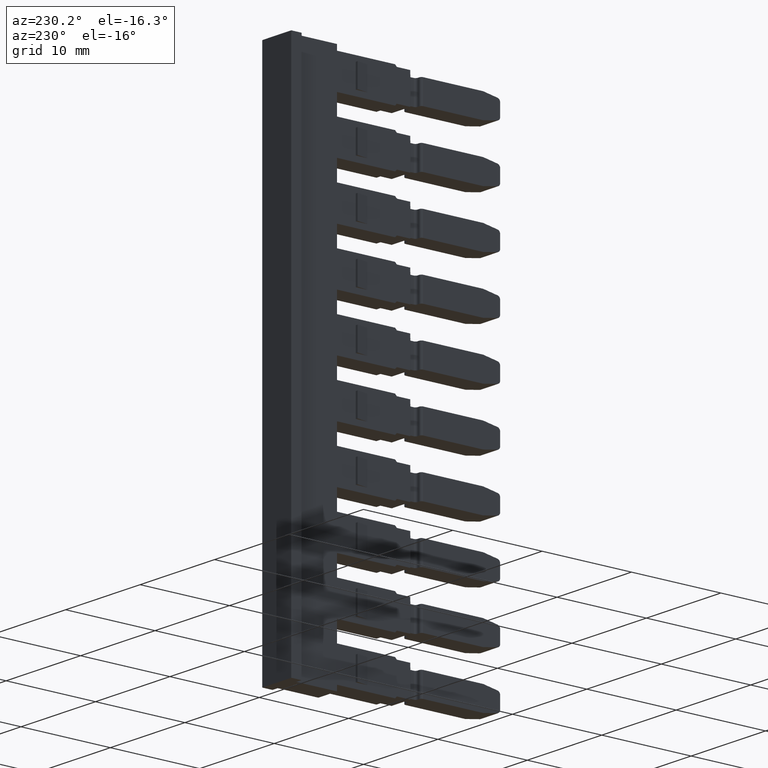
[diagram: clean part render]
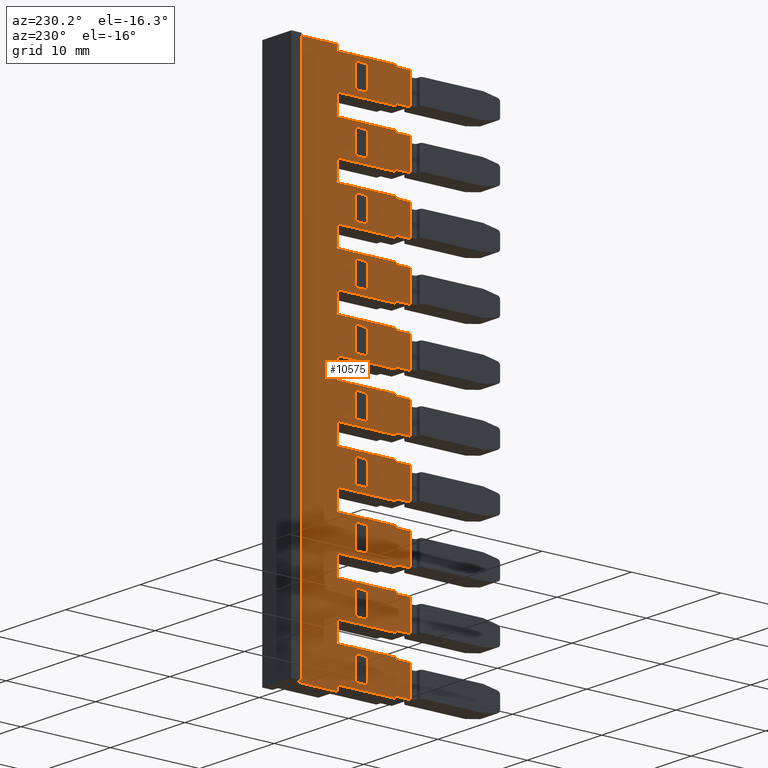
[diagram: same view with one face highlighted and labeled with its STEP entity id]
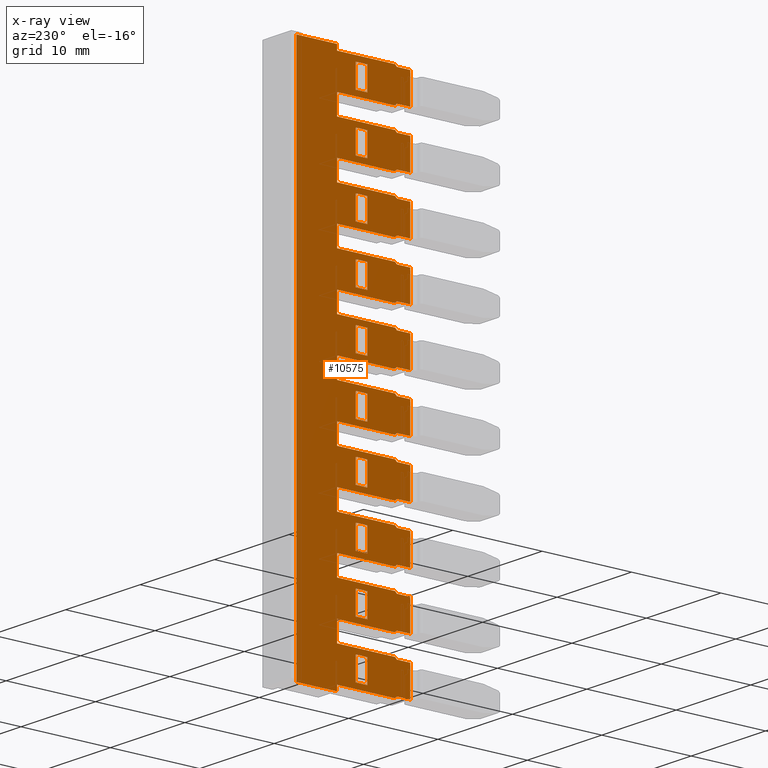
[diagram: x-ray of the same camera — body ghosted, the highlighted face saturated]
A machine part, auxiliary view. The second image highlights one B-rep face of the part: STEP entity #10575.
The next image is the same camera in x-ray: the body ghosted, the highlighted face saturated — about 0% of this face is hidden behind the body in this view.
In plain terms, the highlighted planar face has unit normal (1, -0, 0).
Its self-contained STEP definition (entity closure, byte-faithful):
#992 = VERTEX_POINT ( 'NONE', #4729 ) ;
#1019 = VERTEX_POINT ( 'NONE', #4750 ) ;
#1020 = VERTEX_POINT ( 'NONE', #4740 ) ;
#1029 = VERTEX_POINT ( 'NONE', #4747 ) ;
#1030 = VERTEX_POINT ( 'NONE', #4744 ) ;
#1031 = VERTEX_POINT ( 'NONE', #4748 ) ;
#1051 = VERTEX_POINT ( 'NONE', #4832 ) ;
#1059 = VERTEX_POINT ( 'NONE', #4797 ) ;
#1062 = VERTEX_POINT ( 'NONE', #4796 ) ;
#1063 = VERTEX_POINT ( 'NONE', #4783 ) ;
#1064 = VERTEX_POINT ( 'NONE', #4835 ) ;
#1066 = VERTEX_POINT ( 'NONE', #4810 ) ;
#1072 = VERTEX_POINT ( 'NONE', #4833 ) ;
#1082 = VERTEX_POINT ( 'NONE', #4814 ) ;
#1083 = VERTEX_POINT ( 'NONE', #4816 ) ;
#1094 = VERTEX_POINT ( 'NONE', #4784 ) ;
#1098 = VERTEX_POINT ( 'NONE', #4800 ) ;
#1505 = VECTOR ( 'NONE', #6473, 1000.000000000000000 ) ;
#1507 = VECTOR ( 'NONE', #6499, 1000.000000000000000 ) ;
#1508 = VECTOR ( 'NONE', #6462, 1000.000000000000000 ) ;
#1539 = VECTOR ( 'NONE', #12419, 1000.000000000000000 ) ;
#1545 = VECTOR ( 'NONE', #12439, 1000.000000000000000 ) ;
#1555 = VECTOR ( 'NONE', #12409, 1000.000000000000000 ) ;
#1576 = VECTOR ( 'NONE', #12513, 1000.000000000000000 ) ;
#1577 = VECTOR ( 'NONE', #12488, 1000.000000000000000 ) ;
#1578 = VECTOR ( 'NONE', #12475, 1000.000000000000000 ) ;
#1598 = VECTOR ( 'NONE', #12571, 1000.000000000000000 ) ;
#1631 = VECTOR ( 'NONE', #12668, 1000.000000000000000 ) ;
#1651 = VECTOR ( 'NONE', #12719, 1000.000000000000000 ) ;
#1656 = VECTOR ( 'NONE', #11804, 1000.000000000000000 ) ;
#1683 = VECTOR ( 'NONE', #11784, 1000.000000000000000 ) ;
#1818 = VECTOR ( 'NONE', #11865, 1000.000000000000000 ) ;
#2798 = EDGE_CURVE ( 'NONE', #1083, #8605, #6366, .T. ) ;
#2800 = EDGE_CURVE ( 'NONE', #1051, #1094, #6460, .T. ) ;
#2804 = EDGE_CURVE ( 'NONE', #1031, #1019, #6516, .T. ) ;
#2816 = EDGE_CURVE ( 'NONE', #1030, #992, #12431, .T. ) ;
#2821 = EDGE_CURVE ( 'NONE', #8605, #1072, #12424, .T. ) ;
#2825 = EDGE_CURVE ( 'NONE', #1082, #1062, #12406, .T. ) ;
#2827 = EDGE_CURVE ( 'NONE', #1029, #1020, #12460, .T. ) ;
#2831 = EDGE_CURVE ( 'NONE', #1066, #1059, #12482, .T. ) ;
#2846 = EDGE_CURVE ( 'NONE', #1064, #1063, #12523, .T. ) ;
#2861 = EDGE_CURVE ( 'NONE', #8571, #8578, #12560, .T. ) ;
#2889 = EDGE_CURVE ( 'NONE', #1083, #1063, #12623, .T. ) ;
#2914 = EDGE_CURVE ( 'NONE', #8578, #1098, #12691, .T. ) ;
#2937 = EDGE_CURVE ( 'NONE', #8572, #8571, #11782, .T. ) ;
#2954 = EDGE_CURVE ( 'NONE', #1098, #1064, #11817, .T. ) ;
#2957 = EDGE_CURVE ( 'NONE', #8546, #1072, #11825, .T. ) ;
#2975 = EDGE_CURVE ( 'NONE', #8604, #8572, #11907, .T. ) ;
#2980 = EDGE_CURVE ( 'NONE', #7276, #7268, #11911, .T. ) ;
#2981 = EDGE_CURVE ( 'NONE', #7357, #7418, #11940, .T. ) ;
#2982 = EDGE_CURVE ( 'NONE', #7365, #8604, #11923, .T. ) ;
#2990 = EDGE_CURVE ( 'NONE', #1019, #7345, #11947, .T. ) ;
#2992 = EDGE_CURVE ( 'NONE', #7354, #7422, #11965, .T. ) ;
#2999 = EDGE_CURVE ( 'NONE', #7341, #7342, #11904, .T. ) ;
#3000 = EDGE_CURVE ( 'NONE', #7376, #1030, #11995, .T. ) ;
#3011 = EDGE_CURVE ( 'NONE', #7328, #1031, #12023, .T. ) ;
#3013 = EDGE_CURVE ( 'NONE', #7428, #7421, #12003, .T. ) ;
#3018 = EDGE_CURVE ( 'NONE', #7350, #7376, #12031, .T. ) ;
#3020 = EDGE_CURVE ( 'NONE', #7298, #7300, #12047, .T. ) ;
#3033 = EDGE_CURVE ( 'NONE', #7266, #7276, #12105, .T. ) ;
#3034 = EDGE_CURVE ( 'NONE', #7387, #7341, #12120, .T. ) ;
#3035 = EDGE_CURVE ( 'NONE', #7377, #7387, #12107, .T. ) ;
#3038 = EDGE_CURVE ( 'NONE', #7342, #7293, #12049, .T. ) ;
#3039 = EDGE_CURVE ( 'NONE', #7347, #7392, #12068, .T. ) ;
#3040 = EDGE_CURVE ( 'NONE', #7363, #7390, #12109, .T. ) ;
#3041 = EDGE_CURVE ( 'NONE', #7351, #7512, #12086, .T. ) ;
#3042 = EDGE_CURVE ( 'NONE', #7329, #7307, #12111, .T. ) ;
#3043 = EDGE_CURVE ( 'NONE', #7330, #7415, #12082, .T. ) ;
#3044 = EDGE_CURVE ( 'NONE', #7368, #7433, #12104, .T. ) ;
#3046 = EDGE_CURVE ( 'NONE', #1020, #7329, #12116, .T. ) ;
#3047 = EDGE_CURVE ( 'NONE', #7438, #7441, #12157, .T. ) ;
#3048 = EDGE_CURVE ( 'NONE', #7384, #7339, #12097, .T. ) ;
#3049 = EDGE_CURVE ( 'NONE', #7427, #7348, #12094, .T. ) ;
#3052 = EDGE_CURVE ( 'NONE', #7354, #7392, #12142, .T. ) ;
#3054 = EDGE_CURVE ( 'NONE', #7298, #7327, #12156, .T. ) ;
#3055 = EDGE_CURVE ( 'NONE', #7332, #7377, #12169, .T. ) ;
#3056 = EDGE_CURVE ( 'NONE', #7300, #7355, #12164, .T. ) ;
#3058 = EDGE_CURVE ( 'NONE', #7327, #7355, #12162, .T. ) ;
#3060 = EDGE_CURVE ( 'NONE', #7383, #1082, #12133, .T. ) ;
#3061 = EDGE_CURVE ( 'NONE', #7366, #7374, #12170, .T. ) ;
#3062 = EDGE_CURVE ( 'NONE', #7422, #7356, #12139, .T. ) ;
#3064 = EDGE_CURVE ( 'NONE', #7460, #7479, #12217, .T. ) ;
#3065 = EDGE_CURVE ( 'NONE', #7278, #7357, #12176, .T. ) ;
#3066 = EDGE_CURVE ( 'NONE', #7381, #7350, #12152, .T. ) ;
#3067 = EDGE_CURVE ( 'NONE', #7268, #1029, #12186, .T. ) ;
#3070 = EDGE_CURVE ( 'NONE', #7446, #7500, #12172, .T. ) ;
#3071 = EDGE_CURVE ( 'NONE', #7334, #7470, #12128, .T. ) ;
#3072 = EDGE_CURVE ( 'NONE', #7385, #7373, #12187, .T. ) ;
#3073 = EDGE_CURVE ( 'NONE', #7353, #7396, #12192, .T. ) ;
#3074 = EDGE_CURVE ( 'NONE', #7359, #7368, #12214, .T. ) ;
#3075 = EDGE_CURVE ( 'NONE', #7390, #7431, #12190, .T. ) ;
#3076 = EDGE_CURVE ( 'NONE', #7438, #7414, #12208, .T. ) ;
#3078 = EDGE_CURVE ( 'NONE', #7344, #7381, #12185, .T. ) ;
#3079 = EDGE_CURVE ( 'NONE', #7494, #7431, #12200, .T. ) ;
#3080 = EDGE_CURVE ( 'NONE', #7349, #1066, #12211, .T. ) ;
#3081 = EDGE_CURVE ( 'NONE', #7407, #7403, #12246, .T. ) ;
#3082 = EDGE_CURVE ( 'NONE', #7332, #7374, #12228, .T. ) ;
#3084 = EDGE_CURVE ( 'NONE', #7441, #7461, #12212, .T. ) ;
#3085 = EDGE_CURVE ( 'NONE', #7293, #7365, #12222, .T. ) ;
#3086 = EDGE_CURVE ( 'NONE', #7278, #7421, #12254, .T. ) ;
#3087 = EDGE_CURVE ( 'NONE', #1059, #7428, #12236, .T. ) ;
#3088 = EDGE_CURVE ( 'NONE', #7363, #7494, #12265, .T. ) ;
#3089 = EDGE_CURVE ( 'NONE', #7414, #7461, #12227, .T. ) ;
#3090 = EDGE_CURVE ( 'NONE', #7418, #7328, #12261, .T. ) ;
#3093 = EDGE_CURVE ( 'NONE', #7386, #7358, #12220, .T. ) ;
#3094 = EDGE_CURVE ( 'NONE', #7356, #7349, #12231, .T. ) ;
#3095 = EDGE_CURVE ( 'NONE', #992, #7366, #12278, .T. ) ;
#3096 = EDGE_CURVE ( 'NONE', #7344, #7307, #12291, .T. ) ;
#3097 = EDGE_CURVE ( 'NONE', #1062, #7347, #12284, .T. ) ;
#3098 = EDGE_CURVE ( 'NONE', #7373, #7383, #12287, .T. ) ;
#3099 = EDGE_CURVE ( 'NONE', #7386, #7266, #12301, .T. ) ;
#3100 = EDGE_CURVE ( 'NONE', #7345, #7358, #12223, .T. ) ;
#3103 = EDGE_CURVE ( 'NONE', #7336, #7417, #12295, .T. ) ;
#3108 = EDGE_CURVE ( 'NONE', #7444, #7326, #12266, .T. ) ;
#3111 = EDGE_CURVE ( 'NONE', #8546, #7369, #12313, .T. ) ;
#3112 = EDGE_CURVE ( 'NONE', #7470, #7440, #12331, .T. ) ;
#3113 = EDGE_CURVE ( 'NONE', #7445, #7382, #12346, .T. ) ;
#3115 = EDGE_CURVE ( 'NONE', #7361, #7395, #12349, .T. ) ;
#3120 = EDGE_CURVE ( 'NONE', #7359, #7367, #12336, .T. ) ;
#3121 = EDGE_CURVE ( 'NONE', #7379, #7403, #12320, .T. ) ;
#3122 = EDGE_CURVE ( 'NONE', #7407, #7385, #12347, .T. ) ;
#3123 = EDGE_CURVE ( 'NONE', #7378, #7361, #12312, .T. ) ;
#3124 = EDGE_CURVE ( 'NONE', #7370, #7434, #12373, .T. ) ;
#3126 = EDGE_CURVE ( 'NONE', #7448, #7330, #12376, .T. ) ;
#3128 = EDGE_CURVE ( 'NONE', #7331, #7336, #12361, .T. ) ;
#3129 = EDGE_CURVE ( 'NONE', #7395, #7360, #12355, .T. ) ;
#3130 = EDGE_CURVE ( 'NONE', #7360, #7370, #12350, .T. ) ;
#3131 = EDGE_CURVE ( 'NONE', #7351, #7446, #12367, .T. ) ;
#3132 = EDGE_CURVE ( 'NONE', #7334, #7435, #12386, .T. ) ;
#3133 = EDGE_CURVE ( 'NONE', #7417, #1094, #12362, .T. ) ;
#3136 = EDGE_CURVE ( 'NONE', #7442, #7460, #12357, .T. ) ;
#3138 = EDGE_CURVE ( 'NONE', #7367, #7433, #12390, .T. ) ;
#3142 = EDGE_CURVE ( 'NONE', #7512, #7500, #9717, .T. ) ;
#3143 = EDGE_CURVE ( 'NONE', #7388, #7362, #9721, .T. ) ;
#3144 = EDGE_CURVE ( 'NONE', #7353, #7331, #8620, .T. ) ;
#3145 = EDGE_CURVE ( 'NONE', #7442, #7485, #9718, .T. ) ;
#3146 = EDGE_CURVE ( 'NONE', #7485, #7479, #9720, .T. ) ;
#3147 = EDGE_CURVE ( 'NONE', #7427, #7340, #8639, .T. ) ;
#3149 = EDGE_CURVE ( 'NONE', #7380, #7352, #8609, .T. ) ;
#3150 = EDGE_CURVE ( 'NONE', #7352, #7362, #8624, .T. ) ;
#3151 = EDGE_CURVE ( 'NONE', #7415, #7379, #8631, .T. ) ;
#3152 = EDGE_CURVE ( 'NONE', #7384, #7445, #8630, .T. ) ;
#3153 = EDGE_CURVE ( 'NONE', #7435, #7440, #8641, .T. ) ;
#3154 = EDGE_CURVE ( 'NONE', #7326, #7448, #8652, .T. ) ;
#3155 = EDGE_CURVE ( 'NONE', #7348, #7372, #8647, .T. ) ;
#3156 = EDGE_CURVE ( 'NONE', #7340, #7372, #8616, .T. ) ;
#3157 = EDGE_CURVE ( 'NONE', #7369, #7396, #8611, .T. ) ;
#3158 = EDGE_CURVE ( 'NONE', #7400, #7378, #8618, .T. ) ;
#3159 = EDGE_CURVE ( 'NONE', #1051, #7432, #8671, .T. ) ;
#3160 = EDGE_CURVE ( 'NONE', #7432, #7449, #8661, .T. ) ;
#3161 = EDGE_CURVE ( 'NONE', #7371, #7400, #8644, .T. ) ;
#3162 = EDGE_CURVE ( 'NONE', #7346, #7444, #8608, .T. ) ;
#3163 = EDGE_CURVE ( 'NONE', #7380, #7388, #8668, .T. ) ;
#3164 = EDGE_CURVE ( 'NONE', #7339, #7382, #8672, .T. ) ;
#3165 = EDGE_CURVE ( 'NONE', #7346, #7434, #8685, .T. ) ;
#3166 = EDGE_CURVE ( 'NONE', #7371, #7449, #8677, .T. ) ;
#4218 = ORIENTED_EDGE ( 'NONE', *, *, #3038, .F. ) ;
#4222 = ORIENTED_EDGE ( 'NONE', *, *, #3085, .F. ) ;
#4229 = ORIENTED_EDGE ( 'NONE', *, *, #2982, .F. ) ;
#4268 = ORIENTED_EDGE ( 'NONE', *, *, #2999, .F. ) ;
#4275 = ORIENTED_EDGE ( 'NONE', *, *, #3062, .F. ) ;
#4276 = ORIENTED_EDGE ( 'NONE', *, *, #3115, .F. ) ;
#4277 = ORIENTED_EDGE ( 'NONE', *, *, #2804, .F. ) ;
#4278 = ORIENTED_EDGE ( 'NONE', *, *, #3160, .F. ) ;
#4279 = ORIENTED_EDGE ( 'NONE', *, *, #2992, .F. ) ;
#4280 = ORIENTED_EDGE ( 'NONE', *, *, #3067, .F. ) ;
#4281 = ORIENTED_EDGE ( 'NONE', *, *, #3046, .F. ) ;
#4282 = ORIENTED_EDGE ( 'NONE', *, *, #3052, .T. ) ;
#4283 = ORIENTED_EDGE ( 'NONE', *, *, #3096, .T. ) ;
#4284 = ORIENTED_EDGE ( 'NONE', *, *, #3098, .F. ) ;
#4285 = ORIENTED_EDGE ( 'NONE', *, *, #3158, .F. ) ;
#4286 = ORIENTED_EDGE ( 'NONE', *, *, #3166, .T. ) ;
#4287 = ORIENTED_EDGE ( 'NONE', *, *, #3042, .F. ) ;
#4288 = ORIENTED_EDGE ( 'NONE', *, *, #3043, .F. ) ;
#4289 = ORIENTED_EDGE ( 'NONE', *, *, #3159, .F. ) ;
#4290 = ORIENTED_EDGE ( 'NONE', *, *, #3095, .F. ) ;
#4291 = ORIENTED_EDGE ( 'NONE', *, *, #3080, .F. ) ;
#4293 = ORIENTED_EDGE ( 'NONE', *, *, #3097, .F. ) ;
#4294 = ORIENTED_EDGE ( 'NONE', *, *, #3130, .F. ) ;
#4295 = ORIENTED_EDGE ( 'NONE', *, *, #3035, .F. ) ;
#4296 = ORIENTED_EDGE ( 'NONE', *, *, #3060, .F. ) ;
#4297 = ORIENTED_EDGE ( 'NONE', *, *, #2800, .T. ) ;
#4298 = ORIENTED_EDGE ( 'NONE', *, *, #3099, .F. ) ;
#4299 = ORIENTED_EDGE ( 'NONE', *, *, #3122, .F. ) ;
#4301 = ORIENTED_EDGE ( 'NONE', *, *, #2831, .F. ) ;
#4302 = ORIENTED_EDGE ( 'NONE', *, *, #3078, .F. ) ;
#4303 = ORIENTED_EDGE ( 'NONE', *, *, #3093, .T. ) ;
#4304 = ORIENTED_EDGE ( 'NONE', *, *, #3121, .F. ) ;
#4305 = ORIENTED_EDGE ( 'NONE', *, *, #3108, .F. ) ;
#4306 = ORIENTED_EDGE ( 'NONE', *, *, #3126, .F. ) ;
#4307 = ORIENTED_EDGE ( 'NONE', *, *, #3018, .F. ) ;
#4308 = ORIENTED_EDGE ( 'NONE', *, *, #3154, .F. ) ;
#4309 = ORIENTED_EDGE ( 'NONE', *, *, #3072, .F. ) ;
#4310 = ORIENTED_EDGE ( 'NONE', *, *, #3011, .F. ) ;
#4311 = ORIENTED_EDGE ( 'NONE', *, *, #3034, .F. ) ;
#4312 = ORIENTED_EDGE ( 'NONE', *, *, #3061, .F. ) ;
#4313 = ORIENTED_EDGE ( 'NONE', *, *, #3124, .F. ) ;
#4314 = ORIENTED_EDGE ( 'NONE', *, *, #3161, .F. ) ;
#4315 = ORIENTED_EDGE ( 'NONE', *, *, #3065, .F. ) ;
#4316 = ORIENTED_EDGE ( 'NONE', *, *, #3129, .F. ) ;
#4317 = ORIENTED_EDGE ( 'NONE', *, *, #3087, .F. ) ;
#4318 = ORIENTED_EDGE ( 'NONE', *, *, #2816, .F. ) ;
#4319 = ORIENTED_EDGE ( 'NONE', *, *, #3013, .F. ) ;
#4320 = ORIENTED_EDGE ( 'NONE', *, *, #3081, .T. ) ;
#4321 = ORIENTED_EDGE ( 'NONE', *, *, #3086, .T. ) ;
#4322 = ORIENTED_EDGE ( 'NONE', *, *, #3151, .F. ) ;
#4323 = ORIENTED_EDGE ( 'NONE', *, *, #3094, .F. ) ;
#4324 = ORIENTED_EDGE ( 'NONE', *, *, #3100, .F. ) ;
#4325 = ORIENTED_EDGE ( 'NONE', *, *, #3165, .T. ) ;
#4326 = ORIENTED_EDGE ( 'NONE', *, *, #2981, .F. ) ;
#4327 = ORIENTED_EDGE ( 'NONE', *, *, #3082, .T. ) ;
#4328 = ORIENTED_EDGE ( 'NONE', *, *, #2825, .F. ) ;
#4329 = ORIENTED_EDGE ( 'NONE', *, *, #2980, .F. ) ;
#4330 = ORIENTED_EDGE ( 'NONE', *, *, #2827, .F. ) ;
#4331 = ORIENTED_EDGE ( 'NONE', *, *, #2990, .F. ) ;
#4332 = ORIENTED_EDGE ( 'NONE', *, *, #3033, .F. ) ;
#4333 = ORIENTED_EDGE ( 'NONE', *, *, #3090, .F. ) ;
#4334 = ORIENTED_EDGE ( 'NONE', *, *, #3039, .F. ) ;
#4335 = ORIENTED_EDGE ( 'NONE', *, *, #3123, .F. ) ;
#4336 = ORIENTED_EDGE ( 'NONE', *, *, #3000, .F. ) ;
#4337 = ORIENTED_EDGE ( 'NONE', *, *, #3076, .T. ) ;
#4338 = ORIENTED_EDGE ( 'NONE', *, *, #3056, .F. ) ;
#4339 = ORIENTED_EDGE ( 'NONE', *, *, #3120, .F. ) ;
#4340 = ORIENTED_EDGE ( 'NONE', *, *, #2889, .T. ) ;
#4341 = ORIENTED_EDGE ( 'NONE', *, *, #2798, .F. ) ;
#4342 = ORIENTED_EDGE ( 'NONE', *, *, #2954, .F. ) ;
#4343 = ORIENTED_EDGE ( 'NONE', *, *, #3041, .F. ) ;
#4344 = ORIENTED_EDGE ( 'NONE', *, *, #3075, .F. ) ;
#4345 = ORIENTED_EDGE ( 'NONE', *, *, #3073, .T. ) ;
#4346 = ORIENTED_EDGE ( 'NONE', *, *, #3131, .T. ) ;
#4347 = ORIENTED_EDGE ( 'NONE', *, *, #3058, .T. ) ;
#4348 = ORIENTED_EDGE ( 'NONE', *, *, #3155, .T. ) ;
#4349 = ORIENTED_EDGE ( 'NONE', *, *, #3040, .F. ) ;
#4350 = ORIENTED_EDGE ( 'NONE', *, *, #3156, .F. ) ;
#4351 = ORIENTED_EDGE ( 'NONE', *, *, #3113, .F. ) ;
#4355 = ORIENTED_EDGE ( 'NONE', *, *, #3152, .F. ) ;
#4356 = ORIENTED_EDGE ( 'NONE', *, *, #3079, .T. ) ;
#4358 = ORIENTED_EDGE ( 'NONE', *, *, #3111, .F. ) ;
#4359 = ORIENTED_EDGE ( 'NONE', *, *, #3163, .F. ) ;
#4360 = ORIENTED_EDGE ( 'NONE', *, *, #3089, .T. ) ;
#4361 = ORIENTED_EDGE ( 'NONE', *, *, #3143, .F. ) ;
#4362 = ORIENTED_EDGE ( 'NONE', *, *, #3047, .F. ) ;
#4363 = ORIENTED_EDGE ( 'NONE', *, *, #2861, .F. ) ;
#4364 = ORIENTED_EDGE ( 'NONE', *, *, #2975, .F. ) ;
#4365 = ORIENTED_EDGE ( 'NONE', *, *, #3162, .F. ) ;
#4366 = ORIENTED_EDGE ( 'NONE', *, *, #2846, .F. ) ;
#4367 = ORIENTED_EDGE ( 'NONE', *, *, #3164, .T. ) ;
#4368 = ORIENTED_EDGE ( 'NONE', *, *, #3055, .F. ) ;
#4369 = ORIENTED_EDGE ( 'NONE', *, *, #3044, .T. ) ;
#4370 = ORIENTED_EDGE ( 'NONE', *, *, #3071, .F. ) ;
#4371 = ORIENTED_EDGE ( 'NONE', *, *, #3145, .T. ) ;
#4372 = ORIENTED_EDGE ( 'NONE', *, *, #3128, .F. ) ;
#4373 = ORIENTED_EDGE ( 'NONE', *, *, #3074, .T. ) ;
#4374 = ORIENTED_EDGE ( 'NONE', *, *, #2914, .F. ) ;
#4375 = ORIENTED_EDGE ( 'NONE', *, *, #3150, .T. ) ;
#4376 = ORIENTED_EDGE ( 'NONE', *, *, #3138, .F. ) ;
#4377 = ORIENTED_EDGE ( 'NONE', *, *, #3048, .T. ) ;
#4378 = ORIENTED_EDGE ( 'NONE', *, *, #2937, .F. ) ;
#4379 = ORIENTED_EDGE ( 'NONE', *, *, #3066, .F. ) ;
#4380 = ORIENTED_EDGE ( 'NONE', *, *, #3084, .F. ) ;
#4381 = ORIENTED_EDGE ( 'NONE', *, *, #2957, .T. ) ;
#4382 = ORIENTED_EDGE ( 'NONE', *, *, #3020, .F. ) ;
#4383 = ORIENTED_EDGE ( 'NONE', *, *, #3153, .T. ) ;
#4384 = ORIENTED_EDGE ( 'NONE', *, *, #3142, .F. ) ;
#4385 = ORIENTED_EDGE ( 'NONE', *, *, #3088, .T. ) ;
#4386 = ORIENTED_EDGE ( 'NONE', *, *, #3136, .F. ) ;
#4387 = ORIENTED_EDGE ( 'NONE', *, *, #3103, .F. ) ;
#4388 = ORIENTED_EDGE ( 'NONE', *, *, #3157, .F. ) ;
#4389 = ORIENTED_EDGE ( 'NONE', *, *, #3147, .F. ) ;
#4390 = ORIENTED_EDGE ( 'NONE', *, *, #3146, .T. ) ;
#4391 = ORIENTED_EDGE ( 'NONE', *, *, #3132, .T. ) ;
#4392 = ORIENTED_EDGE ( 'NONE', *, *, #3112, .F. ) ;
#4393 = ORIENTED_EDGE ( 'NONE', *, *, #3070, .T. ) ;
#4394 = ORIENTED_EDGE ( 'NONE', *, *, #3133, .F. ) ;
#4395 = ORIENTED_EDGE ( 'NONE', *, *, #3144, .F. ) ;
#4396 = ORIENTED_EDGE ( 'NONE', *, *, #3149, .T. ) ;
#4397 = ORIENTED_EDGE ( 'NONE', *, *, #3064, .F. ) ;
#4398 = ORIENTED_EDGE ( 'NONE', *, *, #3049, .T. ) ;
#4399 = ORIENTED_EDGE ( 'NONE', *, *, #2821, .F. ) ;
#4400 = ORIENTED_EDGE ( 'NONE', *, *, #3054, .T. ) ;
#4729 = CARTESIAN_POINT ( 'NONE',  ( 1456.769071211365800, 1003.994679537464800, -130.7499999999890300 ) ) ;
#4740 = CARTESIAN_POINT ( 'NONE',  ( 1456.769071211365800, 1003.994679537471700, -124.8499999999890200 ) ) ;
#4744 = CARTESIAN_POINT ( 'NONE',  ( 1456.769071211365800, 1003.994679537464800, -128.5499999999869700 ) ) ;
#4747 = CARTESIAN_POINT ( 'NONE',  ( 1456.769071211365800, 1003.994679537471700, -122.6499999999869300 ) ) ;
#4748 = CARTESIAN_POINT ( 'NONE',  ( 1456.769071211365800, 1003.994679537478500, -116.7499999999869500 ) ) ;
#4750 = CARTESIAN_POINT ( 'NONE',  ( 1456.769071211365800, 1003.994679537478500, -118.9499999999890200 ) ) ;
#4783 = CARTESIAN_POINT ( 'NONE',  ( 1456.769071211365800, 995.7926795375192300, -81.14999999999173500 ) ) ;
#4784 = CARTESIAN_POINT ( 'NONE',  ( 1456.769071211365800, 1003.994679537513400, -87.24999999998694000 ) ) ;
#4796 = CARTESIAN_POINT ( 'NONE',  ( 1456.769071211365800, 1003.994679537492500, -107.1499999999890300 ) ) ;
#4797 = CARTESIAN_POINT ( 'NONE',  ( 1456.769071211365800, 1003.994679537485500, -113.0499999999890300 ) ) ;
#4800 = CARTESIAN_POINT ( 'NONE',  ( 1456.769071211365800, 997.2946795375181600, -77.84999999999023100 ) ) ;
#4810 = CARTESIAN_POINT ( 'NONE',  ( 1456.769071211365800, 1003.994679537485700, -110.8499999999869300 ) ) ;
#4814 = CARTESIAN_POINT ( 'NONE',  ( 1456.769071211365800, 1003.994679537492500, -104.9499999999869400 ) ) ;
#4816 = CARTESIAN_POINT ( 'NONE',  ( 1456.769071211365800, 997.2946795375179400, -81.14999999999176300 ) ) ;
#4832 = CARTESIAN_POINT ( 'NONE',  ( 1456.769071211365800, 1003.994679537513400, -89.44999999998901800 ) ) ;
#4833 = CARTESIAN_POINT ( 'NONE',  ( 1456.769071211365800, 1003.994679537520300, -81.34999999999124000 ) ) ;
#4835 = CARTESIAN_POINT ( 'NONE',  ( 1456.769071211365800, 995.7926795375192300, -77.84999999999014600 ) ) ;
#6089 = FACE_BOUND ( 'NONE', #8060, .T. ) ;
#6105 = FACE_BOUND ( 'NONE', #8050, .T. ) ;
#6107 = FACE_BOUND ( 'NONE', #8092, .T. ) ;
#6111 = FACE_BOUND ( 'NONE', #8045, .T. ) ;
#6112 = PLANE ( 'NONE',  #13560 ) ;
#6114 = FACE_OUTER_BOUND ( 'NONE', #8087, .T. ) ;
#6118 = FACE_BOUND ( 'NONE', #8071, .T. ) ;
#6121 = FACE_BOUND ( 'NONE', #8052, .T. ) ;
#6123 = CARTESIAN_POINT ( 'NONE',  ( 1456.769071211365800, 1007.642679537518000, -100.1158559843420100 ) ) ;
#6126 = FACE_BOUND ( 'NONE', #8081, .T. ) ;
#6128 = FACE_BOUND ( 'NONE', #8099, .T. ) ;
#6143 = FACE_BOUND ( 'NONE', #8041, .T. ) ;
#6151 = DIRECTION ( 'NONE',  ( 0.0000000000000000000, 0.0000000000000000000, -1.000000000000000000 ) ) ;
#6157 = DIRECTION ( 'NONE',  ( 1.000000000000000000, -0.0000000000000000000, 0.0000000000000000000 ) ) ;
#6162 = FACE_BOUND ( 'NONE', #8074, .T. ) ;
#6366 = LINE ( 'NONE', #6523, #1507 ) ;
#6460 = LINE ( 'NONE', #6514, #1505 ) ;
#6462 = DIRECTION ( 'NONE',  ( 0.0000000000000000000, 0.0000000000000000000, -1.000000000000000000 ) ) ;
#6473 = DIRECTION ( 'NONE',  ( 0.0000000000000000000, -5.266048633100518400E-014, 1.000000000000000000 ) ) ;
#6499 = DIRECTION ( 'NONE',  ( 0.0000000000000000000, 0.7071067811877986800, -0.7071067811852963500 ) ) ;
#6501 = CARTESIAN_POINT ( 'NONE',  ( 1456.769071211365800, 1003.994679537499500, -111.9158559843420000 ) ) ;
#6514 = CARTESIAN_POINT ( 'NONE',  ( 1456.769071211365800, 1003.994679537520100, -83.64999999998819600 ) ) ;
#6516 = LINE ( 'NONE', #6501, #1508 ) ;
#6523 = CARTESIAN_POINT ( 'NONE',  ( 1456.769071211365800, 997.2946795375179400, -81.14999999999176300 ) ) ;
#7266 = VERTEX_POINT ( 'NONE', #8783 ) ;
#7268 = VERTEX_POINT ( 'NONE', #8782 ) ;
#7276 = VERTEX_POINT ( 'NONE', #8742 ) ;
#7278 = VERTEX_POINT ( 'NONE', #8773 ) ;
#7293 = VERTEX_POINT ( 'NONE', #8838 ) ;
#7298 = VERTEX_POINT ( 'NONE', #8807 ) ;
#7300 = VERTEX_POINT ( 'NONE', #8802 ) ;
#7307 = VERTEX_POINT ( 'NONE', #8828 ) ;
#7326 = VERTEX_POINT ( 'NONE', #8830 ) ;
#7327 = VERTEX_POINT ( 'NONE', #8826 ) ;
#7328 = VERTEX_POINT ( 'NONE', #8820 ) ;
#7329 = VERTEX_POINT ( 'NONE', #8821 ) ;
#7330 = VERTEX_POINT ( 'NONE', #8822 ) ;
#7331 = VERTEX_POINT ( 'NONE', #8836 ) ;
#7332 = VERTEX_POINT ( 'NONE', #8839 ) ;
#7334 = VERTEX_POINT ( 'NONE', #8850 ) ;
#7336 = VERTEX_POINT ( 'NONE', #8840 ) ;
#7339 = VERTEX_POINT ( 'NONE', #8843 ) ;
#7340 = VERTEX_POINT ( 'NONE', #8847 ) ;
#7341 = VERTEX_POINT ( 'NONE', #8844 ) ;
#7342 = VERTEX_POINT ( 'NONE', #8790 ) ;
#7344 = VERTEX_POINT ( 'NONE', #8845 ) ;
#7345 = VERTEX_POINT ( 'NONE', #8846 ) ;
#7346 = VERTEX_POINT ( 'NONE', #8792 ) ;
#7347 = VERTEX_POINT ( 'NONE', #8793 ) ;
#7348 = VERTEX_POINT ( 'NONE', #8794 ) ;
#7349 = VERTEX_POINT ( 'NONE', #8795 ) ;
#7350 = VERTEX_POINT ( 'NONE', #8900 ) ;
#7351 = VERTEX_POINT ( 'NONE', #8866 ) ;
#7352 = VERTEX_POINT ( 'NONE', #8873 ) ;
#7353 = VERTEX_POINT ( 'NONE', #8888 ) ;
#7354 = VERTEX_POINT ( 'NONE', #8874 ) ;
#7355 = VERTEX_POINT ( 'NONE', #8891 ) ;
#7356 = VERTEX_POINT ( 'NONE', #8858 ) ;
#7357 = VERTEX_POINT ( 'NONE', #8889 ) ;
#7358 = VERTEX_POINT ( 'NONE', #8912 ) ;
#7359 = VERTEX_POINT ( 'NONE', #8876 ) ;
#7360 = VERTEX_POINT ( 'NONE', #8856 ) ;
#7361 = VERTEX_POINT ( 'NONE', #8895 ) ;
#7362 = VERTEX_POINT ( 'NONE', #8885 ) ;
#7363 = VERTEX_POINT ( 'NONE', #8877 ) ;
#7365 = VERTEX_POINT ( 'NONE', #8862 ) ;
#7366 = VERTEX_POINT ( 'NONE', #8869 ) ;
#7367 = VERTEX_POINT ( 'NONE', #8898 ) ;
#7368 = VERTEX_POINT ( 'NONE', #8883 ) ;
#7369 = VERTEX_POINT ( 'NONE', #8902 ) ;
#7370 = VERTEX_POINT ( 'NONE', #8879 ) ;
#7371 = VERTEX_POINT ( 'NONE', #8901 ) ;
#7372 = VERTEX_POINT ( 'NONE', #8854 ) ;
#7373 = VERTEX_POINT ( 'NONE', #8908 ) ;
#7374 = VERTEX_POINT ( 'NONE', #8857 ) ;
#7376 = VERTEX_POINT ( 'NONE', #8894 ) ;
#7377 = VERTEX_POINT ( 'NONE', #8855 ) ;
#7378 = VERTEX_POINT ( 'NONE', #8870 ) ;
#7379 = VERTEX_POINT ( 'NONE', #8882 ) ;
#7380 = VERTEX_POINT ( 'NONE', #8868 ) ;
#7381 = VERTEX_POINT ( 'NONE', #8884 ) ;
#7382 = VERTEX_POINT ( 'NONE', #8914 ) ;
#7383 = VERTEX_POINT ( 'NONE', #8892 ) ;
#7384 = VERTEX_POINT ( 'NONE', #8897 ) ;
#7385 = VERTEX_POINT ( 'NONE', #8859 ) ;
#7386 = VERTEX_POINT ( 'NONE', #8871 ) ;
#7387 = VERTEX_POINT ( 'NONE', #8909 ) ;
#7388 = VERTEX_POINT ( 'NONE', #8899 ) ;
#7390 = VERTEX_POINT ( 'NONE', #8875 ) ;
#7392 = VERTEX_POINT ( 'NONE', #8878 ) ;
#7395 = VERTEX_POINT ( 'NONE', #8881 ) ;
#7396 = VERTEX_POINT ( 'NONE', #8860 ) ;
#7400 = VERTEX_POINT ( 'NONE', #8861 ) ;
#7403 = VERTEX_POINT ( 'NONE', #8890 ) ;
#7407 = VERTEX_POINT ( 'NONE', #8907 ) ;
#7414 = VERTEX_POINT ( 'NONE', #8963 ) ;
#7415 = VERTEX_POINT ( 'NONE', #8924 ) ;
#7417 = VERTEX_POINT ( 'NONE', #8975 ) ;
#7418 = VERTEX_POINT ( 'NONE', #8925 ) ;
#7421 = VERTEX_POINT ( 'NONE', #8953 ) ;
#7422 = VERTEX_POINT ( 'NONE', #8919 ) ;
#7427 = VERTEX_POINT ( 'NONE', #8964 ) ;
#7428 = VERTEX_POINT ( 'NONE', #8974 ) ;
#7431 = VERTEX_POINT ( 'NONE', #8930 ) ;
#7432 = VERTEX_POINT ( 'NONE', #8972 ) ;
#7433 = VERTEX_POINT ( 'NONE', #8942 ) ;
#7434 = VERTEX_POINT ( 'NONE', #8965 ) ;
#7435 = VERTEX_POINT ( 'NONE', #8947 ) ;
#7438 = VERTEX_POINT ( 'NONE', #8931 ) ;
#7440 = VERTEX_POINT ( 'NONE', #8934 ) ;
#7441 = VERTEX_POINT ( 'NONE', #8921 ) ;
#7442 = VERTEX_POINT ( 'NONE', #8923 ) ;
#7444 = VERTEX_POINT ( 'NONE', #8939 ) ;
#7445 = VERTEX_POINT ( 'NONE', #8932 ) ;
#7446 = VERTEX_POINT ( 'NONE', #8944 ) ;
#7448 = VERTEX_POINT ( 'NONE', #8945 ) ;
#7449 = VERTEX_POINT ( 'NONE', #8936 ) ;
#7460 = VERTEX_POINT ( 'NONE', #8962 ) ;
#7461 = VERTEX_POINT ( 'NONE', #8977 ) ;
#7470 = VERTEX_POINT ( 'NONE', #8949 ) ;
#7479 = VERTEX_POINT ( 'NONE', #9030 ) ;
#7485 = VERTEX_POINT ( 'NONE', #9029 ) ;
#7494 = VERTEX_POINT ( 'NONE', #8999 ) ;
#7500 = VERTEX_POINT ( 'NONE', #9033 ) ;
#7512 = VERTEX_POINT ( 'NONE', #8981 ) ;
#8041 = EDGE_LOOP ( 'NONE', ( #4382, #4400, #4347, #4338 ) ) ;
#8045 = EDGE_LOOP ( 'NONE', ( #4355, #4377, #4367, #4351 ) ) ;
#8050 = EDGE_LOOP ( 'NONE', ( #4370, #4391, #4383, #4392 ) ) ;
#8052 = EDGE_LOOP ( 'NONE', ( #4343, #4346, #4393, #4384 ) ) ;
#8060 = EDGE_LOOP ( 'NONE', ( #4339, #4373, #4369, #4376 ) ) ;
#8071 = EDGE_LOOP ( 'NONE', ( #4349, #4385, #4356, #4344 ) ) ;
#8074 = EDGE_LOOP ( 'NONE', ( #4389, #4398, #4348, #4350 ) ) ;
#8081 = EDGE_LOOP ( 'NONE', ( #4386, #4371, #4390, #4397 ) ) ;
#8087 = EDGE_LOOP ( 'NONE', ( #4229, #4222, #4218, #4268, #4311, #4295, #4368, #4327, #4312, #4290, #4318, #4336, #4307, #4379, #4302, #4283, #4287, #4281, #4330, #4280, #4329, #4332, #4298, #4303, #4324, #4331, #4277, #4310, #4333, #4326, #4315, #4321, #4319, #4317, #4301, #4291, #4323, #4275, #4279, #4282, #4334, #4293, #4328, #4296, #4284, #4309, #4299, #4320, #4304, #4322, #4288, #4306, #4308, #4305, #4365, #4325, #4313, #4294, #4316, #4276, #4335, #4285, #4314, #4286, #4278, #4289, #4297, #4394, #4387, #4372, #4395, #4345, #4388, #4358, #4381, #4399, #4341, #4340, #4366, #4342, #4374, #4363, #4378, #4364 ) ) ;
#8092 = EDGE_LOOP ( 'NONE', ( #4359, #4396, #4375, #4361 ) ) ;
#8099 = EDGE_LOOP ( 'NONE', ( #4362, #4337, #4360, #4380 ) ) ;
#8546 = VERTEX_POINT ( 'NONE', #9405 ) ;
#8571 = VERTEX_POINT ( 'NONE', #9410 ) ;
#8572 = VERTEX_POINT ( 'NONE', #9422 ) ;
#8578 = VERTEX_POINT ( 'NONE', #9412 ) ;
#8604 = VERTEX_POINT ( 'NONE', #9468 ) ;
#8605 = VERTEX_POINT ( 'NONE', #9470 ) ;
#8607 = CARTESIAN_POINT ( 'NONE',  ( 1456.769071211365400, 1000.592679537486900, -107.7500000000942500 ) ) ;
#8608 = LINE ( 'NONE', #8686, #12904 ) ;
#8609 = LINE ( 'NONE', #8649, #12913 ) ;
#8610 = DIRECTION ( 'NONE',  ( 0.0000000000000000000, 0.0000000000000000000, 1.000000000000000000 ) ) ;
#8611 = LINE ( 'NONE', #8614, #12903 ) ;
#8612 = DIRECTION ( 'NONE',  ( 0.0000000000000000000, 0.0000000000000000000, 1.000000000000000000 ) ) ;
#8613 = DIRECTION ( 'NONE',  ( 0.0000000000000000000, 0.7071067811902275200, -0.7071067811828676300 ) ) ;
#8614 = CARTESIAN_POINT ( 'NONE',  ( 1456.769071211365800, 997.4946795375184400, -83.54999999998888400 ) ) ;
#8615 = CARTESIAN_POINT ( 'NONE',  ( 1456.769071211365400, 1000.592679537486900, -110.2500000000942500 ) ) ;
#8616 = LINE ( 'NONE', #8607, #12922 ) ;
#8617 = DIRECTION ( 'NONE',  ( 0.0000000000000000000, -0.7071067811881911500, -0.7071067811849037800 ) ) ;
#8618 = LINE ( 'NONE', #8619, #12878 ) ;
#8619 = CARTESIAN_POINT ( 'NONE',  ( 1456.769071211365800, 1001.106402704003100, -92.94999999998999800 ) ) ;
#8620 = LINE ( 'NONE', #8622, #12916 ) ;
#8621 = DIRECTION ( 'NONE',  ( 0.0000000000000000000, 0.0000000000000000000, 1.000000000000000000 ) ) ;
#8622 = CARTESIAN_POINT ( 'NONE',  ( 1456.769071211365800, 995.7926795375192300, -100.1158559843420100 ) ) ;
#8624 = LINE ( 'NONE', #8638, #12871 ) ;
#8626 = CARTESIAN_POINT ( 'NONE',  ( 1456.769071211365400, 1000.592679537514600, -86.65000000009425200 ) ) ;
#8627 = DIRECTION ( 'NONE',  ( 0.0000000000000000000, 1.000000000000000000, 0.0000000000000000000 ) ) ;
#8628 = DIRECTION ( 'NONE',  ( 0.0000000000000000000, 1.000000000000000000, 0.0000000000000000000 ) ) ;
#8629 = CARTESIAN_POINT ( 'NONE',  ( 1456.769071211365400, 1001.892679537507800, -92.55000000009425800 ) ) ;
#8630 = LINE ( 'NONE', #8643, #12877 ) ;
#8631 = LINE ( 'NONE', #8650, #12914 ) ;
#8632 = CARTESIAN_POINT ( 'NONE',  ( 1456.769071211365400, 1001.892679537514700, -86.65000000009425200 ) ) ;
#8633 = DIRECTION ( 'NONE',  ( -3.766016875894430600E-044, -1.000000000000000000, -2.195768806939460200E-029 ) ) ;
#8634 = DIRECTION ( 'NONE',  ( 0.0000000000000000000, 0.0000000000000000000, 1.000000000000000000 ) ) ;
#8635 = CARTESIAN_POINT ( 'NONE',  ( 1456.769071211365400, 1000.592679537493700, -101.8500000000942500 ) ) ;
#8636 = DIRECTION ( 'NONE',  ( 0.0000000000000000000, 0.0000000000000000000, 1.000000000000000000 ) ) ;
#8638 = CARTESIAN_POINT ( 'NONE',  ( 1456.769071211365400, 1001.892679537493800, -104.3500000000942500 ) ) ;
#8639 = LINE ( 'NONE', #8615, #12874 ) ;
#8640 = DIRECTION ( 'NONE',  ( 0.0000000000000000000, 0.0000000000000000000, 1.000000000000000000 ) ) ;
#8641 = LINE ( 'NONE', #8629, #12899 ) ;
#8642 = CARTESIAN_POINT ( 'NONE',  ( 1456.769071211365800, 997.2946795375042900, -98.84999999998997600 ) ) ;
#8643 = CARTESIAN_POINT ( 'NONE',  ( 1456.769071211365400, 1000.592679537472900, -122.0500000000942400 ) ) ;
#8644 = LINE ( 'NONE', #8689, #12917 ) ;
#8645 = DIRECTION ( 'NONE',  ( 0.0000000000000000000, 1.000000000000000000, 0.0000000000000000000 ) ) ;
#8646 = DIRECTION ( 'NONE',  ( 0.0000000000000000000, 1.000000000000000000, 0.0000000000000000000 ) ) ;
#8647 = LINE ( 'NONE', #8648, #12902 ) ;
#8648 = CARTESIAN_POINT ( 'NONE',  ( 1456.769071211365400, 1001.892679537487000, -110.2500000000942500 ) ) ;
#8649 = CARTESIAN_POINT ( 'NONE',  ( 1456.769071211365400, 1000.592679537493700, -104.3500000000942500 ) ) ;
#8650 = CARTESIAN_POINT ( 'NONE',  ( 1456.769071211365800, 997.4946795374974000, -101.2499999999890400 ) ) ;
#8651 = DIRECTION ( 'NONE',  ( 0.0000000000000000000, 0.0000000000000000000, -1.000000000000000000 ) ) ;
#8652 = LINE ( 'NONE', #8642, #12923 ) ;
#8653 = DIRECTION ( 'NONE',  ( 0.0000000000000000000, 1.000000000000000000, 3.433133262256396200E-014 ) ) ;
#8654 = DIRECTION ( 'NONE',  ( 0.0000000000000000000, 0.0000000000000000000, -1.000000000000000000 ) ) ;
#8655 = DIRECTION ( 'NONE',  ( 0.0000000000000000000, 0.0000000000000000000, 1.000000000000000000 ) ) ;
#8657 = CARTESIAN_POINT ( 'NONE',  ( 1456.769071211365800, 997.4946795375115000, -89.44999999998889000 ) ) ;
#8660 = DIRECTION ( 'NONE',  ( 0.0000000000000000000, 1.000000000000000000, 6.401193638283150300E-015 ) ) ;
#8661 = LINE ( 'NONE', #8657, #12881 ) ;
#8663 = DIRECTION ( 'NONE',  ( 0.0000000000000000000, 1.000000000000000000, 3.433133262256396200E-014 ) ) ;
#8667 = CARTESIAN_POINT ( 'NONE',  ( 1456.769071211365800, 997.4946795375112700, -89.44999999998903200 ) ) ;
#8668 = LINE ( 'NONE', #8679, #12888 ) ;
#8669 = DIRECTION ( 'NONE',  ( -3.766016875894430600E-044, -1.000000000000000000, -2.195768806939460200E-029 ) ) ;
#8670 = DIRECTION ( 'NONE',  ( 0.0000000000000000000, 0.0000000000000000000, -1.000000000000000000 ) ) ;
#8671 = LINE ( 'NONE', #8667, #12875 ) ;
#8672 = LINE ( 'NONE', #8684, #12893 ) ;
#8673 = CARTESIAN_POINT ( 'NONE',  ( 1456.769071211365800, 995.7946795375052000, -95.54999999998840100 ) ) ;
#8676 = CARTESIAN_POINT ( 'NONE',  ( 1456.769071211365800, 995.7946795375121400, -89.64999999998841000 ) ) ;
#8677 = LINE ( 'NONE', #8676, #12901 ) ;
#8678 = DIRECTION ( 'NONE',  ( 0.0000000000000000000, -0.7071067811881911500, -0.7071067811849037800 ) ) ;
#8679 = CARTESIAN_POINT ( 'NONE',  ( 1456.769071211365400, 1000.592679537493700, -104.3500000000942500 ) ) ;
#8684 = CARTESIAN_POINT ( 'NONE',  ( 1456.769071211365400, 1001.892679537473000, -122.0500000000942400 ) ) ;
#8685 = LINE ( 'NONE', #8673, #12876 ) ;
#8686 = CARTESIAN_POINT ( 'NONE',  ( 1456.769071211365800, 995.7926795375053600, -111.9158559843420000 ) ) ;
#8689 = CARTESIAN_POINT ( 'NONE',  ( 1456.769071211365800, 995.7926795375123000, -106.0158559843420000 ) ) ;
#8690 = DIRECTION ( 'NONE',  ( 0.0000000000000000000, 0.0000000000000000000, 1.000000000000000000 ) ) ;
#8742 = CARTESIAN_POINT ( 'NONE',  ( 1456.769071211365800, 997.2946795374764400, -122.4499999999899600 ) ) ;
#8773 = CARTESIAN_POINT ( 'NONE',  ( 1456.769071211365800, 995.7926795374845600, -113.2499999999883900 ) ) ;
#8782 = CARTESIAN_POINT ( 'NONE',  ( 1456.769071211365800, 997.4946795374754600, -122.6499999999875100 ) ) ;
#8783 = CARTESIAN_POINT ( 'NONE',  ( 1456.769071211365800, 995.7926795374775100, -122.4499999999900300 ) ) ;
#8790 = CARTESIAN_POINT ( 'NONE',  ( 1456.769071211365800, 1003.994679537458000, -134.4499999999869400 ) ) ;
#8792 = CARTESIAN_POINT ( 'NONE',  ( 1456.769071211365800, 995.7926795375053600, -95.54999999998840100 ) ) ;
#8793 = CARTESIAN_POINT ( 'NONE',  ( 1456.769071211365800, 997.4946795374903600, -107.1499999999887200 ) ) ;
#8794 = CARTESIAN_POINT ( 'NONE',  ( 1456.769071211365800, 1001.892679537487000, -110.2500000000942500 ) ) ;
#8795 = CARTESIAN_POINT ( 'NONE',  ( 1456.769071211365800, 997.4946795374894500, -110.8499999999875200 ) ) ;
#8802 = CARTESIAN_POINT ( 'NONE',  ( 1456.769071211365800, 1000.592679537514000, -78.25000000009424600 ) ) ;
#8807 = CARTESIAN_POINT ( 'NONE',  ( 1456.769071211365800, 1000.592679537515100, -80.75000000009424600 ) ) ;
#8820 = CARTESIAN_POINT ( 'NONE',  ( 1456.769071211365800, 997.4946795374825100, -116.7499999999875400 ) ) ;
#8821 = CARTESIAN_POINT ( 'NONE',  ( 1456.769071211365800, 997.4946795374695500, -124.8499999999887300 ) ) ;
#8822 = CARTESIAN_POINT ( 'NONE',  ( 1456.769071211365800, 1003.994679537499500, -99.04999999998693700 ) ) ;
#8826 = CARTESIAN_POINT ( 'NONE',  ( 1456.769071211365800, 1001.892679537514000, -80.75000000009424600 ) ) ;
#8828 = CARTESIAN_POINT ( 'NONE',  ( 1456.769071211365800, 997.2946795374693900, -125.0499999999883600 ) ) ;
#8830 = CARTESIAN_POINT ( 'NONE',  ( 1456.769071211365800, 997.2946795375042900, -98.84999999998996100 ) ) ;
#8836 = CARTESIAN_POINT ( 'NONE',  ( 1456.769071211365800, 995.7926795375192300, -87.04999999999002100 ) ) ;
#8838 = CARTESIAN_POINT ( 'NONE',  ( 1456.769071211365800, 1003.994679537457300, -135.0499999999870200 ) ) ;
#8839 = CARTESIAN_POINT ( 'NONE',  ( 1456.769071211365800, 995.7926795374636400, -130.9499999999884200 ) ) ;
#8840 = CARTESIAN_POINT ( 'NONE',  ( 1456.769071211365800, 997.2946795375181600, -87.04999999998995000 ) ) ;
#8843 = CARTESIAN_POINT ( 'NONE',  ( 1456.769071211365800, 1001.892679537473000, -122.0500000000942400 ) ) ;
#8844 = CARTESIAN_POINT ( 'NONE',  ( 1456.769071211365800, 997.4946795374615900, -134.4499999999875100 ) ) ;
#8845 = CARTESIAN_POINT ( 'NONE',  ( 1456.769071211365800, 995.7926795374706900, -125.0499999999883900 ) ) ;
#8846 = CARTESIAN_POINT ( 'NONE',  ( 1456.769071211365800, 997.4946795374763700, -118.9499999999887200 ) ) ;
#8847 = CARTESIAN_POINT ( 'NONE',  ( 1456.769071211365800, 1000.592679537486900, -107.7500000000942500 ) ) ;
#8850 = CARTESIAN_POINT ( 'NONE',  ( 1456.769071211365800, 1000.592679537505500, -92.55000000009425800 ) ) ;
#8854 = CARTESIAN_POINT ( 'NONE',  ( 1456.769071211365400, 1001.892679537487000, -107.7500000000942500 ) ) ;
#8855 = CARTESIAN_POINT ( 'NONE',  ( 1456.769071211365800, 995.7926795374636400, -134.2499999999900500 ) ) ;
#8856 = CARTESIAN_POINT ( 'NONE',  ( 1456.769071211365800, 1003.994679537506300, -95.34999999998902400 ) ) ;
#8857 = CARTESIAN_POINT ( 'NONE',  ( 1456.769071211365800, 997.2946795374624600, -130.9499999999883600 ) ) ;
#8858 = CARTESIAN_POINT ( 'NONE',  ( 1456.769071211365800, 997.2946795374904200, -110.6499999999899400 ) ) ;
#8859 = CARTESIAN_POINT ( 'NONE',  ( 1456.769071211365800, 995.7926795374984300, -104.7499999999900200 ) ) ;
#8860 = CARTESIAN_POINT ( 'NONE',  ( 1456.769071211365800, 997.2946795375180500, -83.74999999998836100 ) ) ;
#8861 = CARTESIAN_POINT ( 'NONE',  ( 1456.769071211365800, 995.7926795375123000, -92.94999999999002700 ) ) ;
#8862 = CARTESIAN_POINT ( 'NONE',  ( 1456.769071211365800, 1008.542679537461000, -135.0499999999872200 ) ) ;
#8866 = CARTESIAN_POINT ( 'NONE',  ( 1456.769071211365800, 1000.592679537477600, -116.1500000000942700 ) ) ;
#8868 = CARTESIAN_POINT ( 'NONE',  ( 1456.769071211365800, 1000.592679537491600, -104.3500000000942500 ) ) ;
#8869 = CARTESIAN_POINT ( 'NONE',  ( 1456.769071211365800, 997.4946795374625000, -130.7499999999887200 ) ) ;
#8870 = CARTESIAN_POINT ( 'NONE',  ( 1456.769071211365800, 997.2946795375111200, -92.94999999998995600 ) ) ;
#8871 = CARTESIAN_POINT ( 'NONE',  ( 1456.769071211365800, 995.7926795374775100, -119.1499999999884000 ) ) ;
#8873 = CARTESIAN_POINT ( 'NONE',  ( 1456.769071211365800, 1001.892679537493800, -104.3500000000942500 ) ) ;
#8874 = CARTESIAN_POINT ( 'NONE',  ( 1456.769071211365800, 995.7926795374914900, -107.3499999999884000 ) ) ;
#8875 = CARTESIAN_POINT ( 'NONE',  ( 1456.769071211365800, 1000.592679537466000, -125.4500000000942600 ) ) ;
#8876 = CARTESIAN_POINT ( 'NONE',  ( 1456.769071211365800, 1000.592679537498400, -98.45000000009424900 ) ) ;
#8877 = CARTESIAN_POINT ( 'NONE',  ( 1456.769071211365800, 1000.592679537463800, -127.9500000000942600 ) ) ;
#8878 = CARTESIAN_POINT ( 'NONE',  ( 1456.769071211365800, 997.2946795374903100, -107.3499999999883700 ) ) ;
#8879 = CARTESIAN_POINT ( 'NONE',  ( 1456.769071211365800, 997.4946795375042300, -95.34999999998872500 ) ) ;
#8881 = CARTESIAN_POINT ( 'NONE',  ( 1456.769071211365800, 1003.994679537506500, -93.14999999998693200 ) ) ;
#8882 = CARTESIAN_POINT ( 'NONE',  ( 1456.769071211365800, 997.4946795374972900, -101.2499999999887200 ) ) ;
#8883 = CARTESIAN_POINT ( 'NONE',  ( 1456.769071211365800, 1001.892679537500700, -98.45000000009424900 ) ) ;
#8884 = CARTESIAN_POINT ( 'NONE',  ( 1456.769071211365800, 995.7926795374706900, -128.3499999999900200 ) ) ;
#8885 = CARTESIAN_POINT ( 'NONE',  ( 1456.769071211365400, 1001.892679537493800, -101.8500000000942500 ) ) ;
#8888 = CARTESIAN_POINT ( 'NONE',  ( 1456.769071211365800, 995.7926795375192300, -83.74999999998839000 ) ) ;
#8889 = CARTESIAN_POINT ( 'NONE',  ( 1456.769071211365800, 995.7926795374845600, -116.5499999999900200 ) ) ;
#8890 = CARTESIAN_POINT ( 'NONE',  ( 1456.769071211365800, 997.2946795374971300, -101.4499999999883500 ) ) ;
#8891 = CARTESIAN_POINT ( 'NONE',  ( 1456.769071211366100, 1001.892679537514000, -78.25000000009424600 ) ) ;
#8892 = CARTESIAN_POINT ( 'NONE',  ( 1456.769071211365800, 997.4946795374963800, -104.9499999999875300 ) ) ;
#8894 = CARTESIAN_POINT ( 'NONE',  ( 1456.769071211365800, 997.4946795374686400, -128.5499999999875100 ) ) ;
#8895 = CARTESIAN_POINT ( 'NONE',  ( 1456.769071211365800, 997.4946795375102500, -93.14999999998751400 ) ) ;
#8897 = CARTESIAN_POINT ( 'NONE',  ( 1456.769071211365800, 1000.592679537470600, -122.0500000000942400 ) ) ;
#8898 = CARTESIAN_POINT ( 'NONE',  ( 1456.769071211365800, 1000.592679537500700, -95.95000000009424900 ) ) ;
#8899 = CARTESIAN_POINT ( 'NONE',  ( 1456.769071211365800, 1000.592679537493700, -101.8500000000942500 ) ) ;
#8900 = CARTESIAN_POINT ( 'NONE',  ( 1456.769071211365800, 997.2946795374695100, -128.3499999999899600 ) ) ;
#8901 = CARTESIAN_POINT ( 'NONE',  ( 1456.769071211365800, 995.7926795375123000, -89.64999999998839500 ) ) ;
#8902 = CARTESIAN_POINT ( 'NONE',  ( 1456.769071211365800, 997.4946795375181000, -83.54999999998871400 ) ) ;
#8907 = CARTESIAN_POINT ( 'NONE',  ( 1456.769071211365800, 995.7926795374984300, -101.4499999999883800 ) ) ;
#8908 = CARTESIAN_POINT ( 'NONE',  ( 1456.769071211365800, 997.2946795374972500, -104.7499999999899700 ) ) ;
#8909 = CARTESIAN_POINT ( 'NONE',  ( 1456.769071211365800, 997.2946795374625700, -134.2499999999899700 ) ) ;
#8912 = CARTESIAN_POINT ( 'NONE',  ( 1456.769071211365800, 997.2946795374763300, -119.1499999999883700 ) ) ;
#8914 = CARTESIAN_POINT ( 'NONE',  ( 1456.769071211365400, 1001.892679537473000, -119.5500000000942400 ) ) ;
#8919 = CARTESIAN_POINT ( 'NONE',  ( 1456.769071211365800, 995.7926795374914900, -110.6499999999900300 ) ) ;
#8921 = CARTESIAN_POINT ( 'NONE',  ( 1456.769071211365800, 1000.592679537459200, -131.3500000000942400 ) ) ;
#8923 = CARTESIAN_POINT ( 'NONE',  ( 1456.769071211365800, 1000.592679537512400, -86.65000000009425200 ) ) ;
#8924 = CARTESIAN_POINT ( 'NONE',  ( 1456.769071211365800, 1003.994679537499500, -101.2499999999890200 ) ) ;
#8925 = CARTESIAN_POINT ( 'NONE',  ( 1456.769071211365800, 997.2946795374833800, -116.5499999999899600 ) ) ;
#8930 = CARTESIAN_POINT ( 'NONE',  ( 1456.769071211365400, 1001.892679537466100, -125.4500000000942600 ) ) ;
#8931 = CARTESIAN_POINT ( 'NONE',  ( 1456.769071211365800, 1000.592679537456900, -133.8500000000942400 ) ) ;
#8932 = CARTESIAN_POINT ( 'NONE',  ( 1456.769071211365800, 1000.592679537472900, -119.5500000000942400 ) ) ;
#8934 = CARTESIAN_POINT ( 'NONE',  ( 1456.769071211365400, 1001.892679537507800, -90.05000000009424400 ) ) ;
#8936 = CARTESIAN_POINT ( 'NONE',  ( 1456.769071211365800, 997.2946795375110000, -89.64999999998836700 ) ) ;
#8939 = CARTESIAN_POINT ( 'NONE',  ( 1456.769071211365800, 995.7926795375053600, -98.84999999999003300 ) ) ;
#8942 = CARTESIAN_POINT ( 'NONE',  ( 1456.769071211365400, 1001.892679537500700, -95.95000000009424900 ) ) ;
#8944 = CARTESIAN_POINT ( 'NONE',  ( 1456.769071211365800, 1001.892679537479800, -116.1500000000942700 ) ) ;
#8945 = CARTESIAN_POINT ( 'NONE',  ( 1456.769071211365800, 997.4946795375033200, -99.04999999998752000 ) ) ;
#8947 = CARTESIAN_POINT ( 'NONE',  ( 1456.769071211365800, 1001.892679537507800, -92.55000000009425800 ) ) ;
#8949 = CARTESIAN_POINT ( 'NONE',  ( 1456.769071211365800, 1000.592679537507700, -90.05000000009424400 ) ) ;
#8953 = CARTESIAN_POINT ( 'NONE',  ( 1456.769071211365800, 997.2946795374832600, -113.2499999999883600 ) ) ;
#8962 = CARTESIAN_POINT ( 'NONE',  ( 1456.769071211365800, 1000.592679537514600, -84.15000000009425200 ) ) ;
#8963 = CARTESIAN_POINT ( 'NONE',  ( 1456.769071211365800, 1001.892679537459200, -133.8500000000942400 ) ) ;
#8964 = CARTESIAN_POINT ( 'NONE',  ( 1456.769071211365800, 1000.592679537484600, -110.2500000000942500 ) ) ;
#8965 = CARTESIAN_POINT ( 'NONE',  ( 1456.769071211365800, 997.2946795375041800, -95.54999999998837300 ) ) ;
#8972 = CARTESIAN_POINT ( 'NONE',  ( 1456.769071211365800, 997.4946795375111600, -89.44999999998871900 ) ) ;
#8974 = CARTESIAN_POINT ( 'NONE',  ( 1456.769071211365800, 997.4946795374834200, -113.0499999999887100 ) ) ;
#8975 = CARTESIAN_POINT ( 'NONE',  ( 1456.769071211365800, 997.4946795375173000, -87.24999999998752300 ) ) ;
#8977 = CARTESIAN_POINT ( 'NONE',  ( 1456.769071211365400, 1001.892679537459200, -131.3500000000942400 ) ) ;
#8981 = CARTESIAN_POINT ( 'NONE',  ( 1456.769071211365800, 1000.592679537479700, -113.6500000000942500 ) ) ;
#8999 = CARTESIAN_POINT ( 'NONE',  ( 1456.769071211365800, 1001.892679537466100, -127.9500000000942600 ) ) ;
#9029 = CARTESIAN_POINT ( 'NONE',  ( 1456.769071211365800, 1001.892679537514700, -86.65000000009425200 ) ) ;
#9030 = CARTESIAN_POINT ( 'NONE',  ( 1456.769071211365400, 1001.892679537514700, -84.15000000009425200 ) ) ;
#9033 = CARTESIAN_POINT ( 'NONE',  ( 1456.769071211365400, 1001.892679537479800, -113.6500000000942500 ) ) ;
#9405 = CARTESIAN_POINT ( 'NONE',  ( 1456.769071211365800, 1003.994679537520300, -83.54999999998902600 ) ) ;
#9410 = CARTESIAN_POINT ( 'NONE',  ( 1456.769071211365800, 1003.994679537512800, -77.64999999999328400 ) ) ;
#9412 = CARTESIAN_POINT ( 'NONE',  ( 1456.769071211365800, 997.4946795375173000, -77.64999999999308500 ) ) ;
#9422 = CARTESIAN_POINT ( 'NONE',  ( 1456.769071211365800, 1003.994679537513400, -77.04999999999287800 ) ) ;
#9468 = CARTESIAN_POINT ( 'NONE',  ( 1456.769071211365800, 1008.542679537517400, -77.04999999999270700 ) ) ;
#9470 = CARTESIAN_POINT ( 'NONE',  ( 1456.769071211365800, 997.4946795375181000, -81.34999999999145400 ) ) ;
#9712 = DIRECTION ( 'NONE',  ( 0.0000000000000000000, 1.000000000000000000, 0.0000000000000000000 ) ) ;
#9713 = CARTESIAN_POINT ( 'NONE',  ( 1456.769071211365400, 1000.592679537479700, -113.6500000000942500 ) ) ;
#9717 = LINE ( 'NONE', #9713, #12880 ) ;
#9718 = LINE ( 'NONE', #8626, #12909 ) ;
#9720 = LINE ( 'NONE', #8632, #12911 ) ;
#9721 = LINE ( 'NONE', #8635, #12885 ) ;
#10575 = ADVANCED_FACE ( 'NONE', ( #6114, #6111, #6162, #6107, #6089, #6105, #6126, #6143, #6121, #6118, #6128 ), #6112, .F. ) ;
#11772 = CARTESIAN_POINT ( 'NONE',  ( 1456.769071211365800, 1003.994679537513400, -100.1158559843420100 ) ) ;
#11782 = LINE ( 'NONE', #11772, #1683 ) ;
#11784 = DIRECTION ( 'NONE',  ( 0.0000000000000000000, 0.0000000000000000000, -1.000000000000000000 ) ) ;
#11804 = DIRECTION ( 'NONE',  ( -0.0000000000000000000, -1.000000000000000000, -0.0000000000000000000 ) ) ;
#11817 = LINE ( 'NONE', #11826, #1656 ) ;
#11825 = LINE ( 'NONE', #11884, #1818 ) ;
#11826 = CARTESIAN_POINT ( 'NONE',  ( 1456.769071211365800, 1007.642679537518000, -77.84999999999017500 ) ) ;
#11865 = DIRECTION ( 'NONE',  ( 0.0000000000000000000, -5.266048633100518400E-014, 1.000000000000000000 ) ) ;
#11884 = CARTESIAN_POINT ( 'NONE',  ( 1456.769071211365800, 1003.994679537520100, -83.64999999998819600 ) ) ;
#11898 = DIRECTION ( 'NONE',  ( 0.0000000000000000000, 0.7071067811902275200, -0.7071067811828676300 ) ) ;
#11899 = CARTESIAN_POINT ( 'NONE',  ( 1456.769071211365800, 1001.106402703975200, -116.5499999999899900 ) ) ;
#11900 = CARTESIAN_POINT ( 'NONE',  ( 1456.769071211365800, 1008.542679537515100, -100.1158559843420100 ) ) ;
#11904 = LINE ( 'NONE', #11960, #13802 ) ;
#11907 = LINE ( 'NONE', #11921, #13760 ) ;
#11911 = LINE ( 'NONE', #11938, #13791 ) ;
#11921 = CARTESIAN_POINT ( 'NONE',  ( 1456.769071211365800, 1004.894679537514000, -77.04999999999309100 ) ) ;
#11923 = LINE ( 'NONE', #11900, #13803 ) ;
#11924 = DIRECTION ( 'NONE',  ( -0.0000000000000000000, -0.0000000000000000000, 1.000000000000000000 ) ) ;
#11933 = DIRECTION ( 'NONE',  ( 0.0000000000000000000, 1.000000000000000000, 6.401193638283150300E-015 ) ) ;
#11938 = CARTESIAN_POINT ( 'NONE',  ( 1456.769071211365800, 997.2946795374764400, -122.4499999999899700 ) ) ;
#11939 = DIRECTION ( 'NONE',  ( 0.0000000000000000000, -1.000000000000000000, -9.317217804676702700E-014 ) ) ;
#11940 = LINE ( 'NONE', #11899, #13789 ) ;
#11947 = LINE ( 'NONE', #11961, #13799 ) ;
#11949 = DIRECTION ( 'NONE',  ( -3.766016875894430600E-044, -1.000000000000000000, -2.195768806939460200E-029 ) ) ;
#11960 = CARTESIAN_POINT ( 'NONE',  ( 1456.769071211365800, 997.4946795374626200, -134.4499999999864000 ) ) ;
#11961 = CARTESIAN_POINT ( 'NONE',  ( 1456.769071211365800, 997.4946795374764900, -118.9499999999890300 ) ) ;
#11963 = DIRECTION ( 'NONE',  ( 0.0000000000000000000, 0.0000000000000000000, -1.000000000000000000 ) ) ;
#11965 = LINE ( 'NONE', #11975, #13784 ) ;
#11975 = CARTESIAN_POINT ( 'NONE',  ( 1456.769071211365800, 995.7926795374914900, -123.7158559843420100 ) ) ;
#11987 = CARTESIAN_POINT ( 'NONE',  ( 1456.769071211365800, 997.4946795374837600, -113.0499999999888800 ) ) ;
#11995 = LINE ( 'NONE', #12021, #13797 ) ;
#12003 = LINE ( 'NONE', #11987, #13761 ) ;
#12004 = DIRECTION ( 'NONE',  ( 0.0000000000000000000, 1.000000000000000000, -9.281390519504917400E-014 ) ) ;
#12007 = CARTESIAN_POINT ( 'NONE',  ( 1456.769071211365800, 997.4946795374835300, -116.7499999999864100 ) ) ;
#12011 = DIRECTION ( 'NONE',  ( 0.0000000000000000000, -0.7071067811881911500, -0.7071067811849037800 ) ) ;
#12014 = DIRECTION ( 'NONE',  ( 0.0000000000000000000, 1.000000000000000000, -9.281390519504917400E-014 ) ) ;
#12018 = DIRECTION ( 'NONE',  ( 0.0000000000000000000, 1.000000000000000000, -9.281390519504917400E-014 ) ) ;
#12021 = CARTESIAN_POINT ( 'NONE',  ( 1456.769071211365800, 997.4946795374696600, -128.5499999999864000 ) ) ;
#12023 = LINE ( 'NONE', #12007, #13781 ) ;
#12031 = LINE ( 'NONE', #12034, #13765 ) ;
#12034 = CARTESIAN_POINT ( 'NONE',  ( 1456.769071211365800, 997.2946795374695100, -128.3499999999899600 ) ) ;
#12047 = LINE ( 'NONE', #12061, #12804 ) ;
#12049 = LINE ( 'NONE', #12115, #12774 ) ;
#12050 = DIRECTION ( 'NONE',  ( 0.0000000000000000000, 0.0000000000000000000, 1.000000000000000000 ) ) ;
#12061 = CARTESIAN_POINT ( 'NONE',  ( 1456.769071211366100, 1000.592679537514000, -80.75000000009424600 ) ) ;
#12068 = LINE ( 'NONE', #12077, #12763 ) ;
#12073 = DIRECTION ( 'NONE',  ( 0.0000000000000000000, 0.7071067811902275200, -0.7071067811828676300 ) ) ;
#12077 = CARTESIAN_POINT ( 'NONE',  ( 1456.769071211365800, 997.4946795374907000, -107.1499999999888900 ) ) ;
#12079 = CARTESIAN_POINT ( 'NONE',  ( 1456.769071211365800, 1001.106402703968200, -122.4499999999900000 ) ) ;
#12080 = DIRECTION ( 'NONE',  ( 0.0000000000000000000, 1.000000000000000000, 6.401193638283150300E-015 ) ) ;
#12081 = DIRECTION ( 'NONE',  ( 0.0000000000000000000, -0.7071067811881911500, -0.7071067811849037800 ) ) ;
#12082 = LINE ( 'NONE', #12110, #12757 ) ;
#12084 = DIRECTION ( 'NONE',  ( 0.0000000000000000000, 0.0000000000000000000, -1.000000000000000000 ) ) ;
#12085 = DIRECTION ( 'NONE',  ( 0.0000000000000000000, 0.0000000000000000000, -1.000000000000000000 ) ) ;
#12086 = LINE ( 'NONE', #12122, #12805 ) ;
#12087 = DIRECTION ( 'NONE',  ( 0.0000000000000000000, 0.7071067811902275200, -0.7071067811828676300 ) ) ;
#12089 = CARTESIAN_POINT ( 'NONE',  ( 1456.769071211365400, 1001.892679537500700, -98.45000000009424900 ) ) ;
#12090 = DIRECTION ( 'NONE',  ( 0.0000000000000000000, 0.0000000000000000000, 1.000000000000000000 ) ) ;
#12091 = CARTESIAN_POINT ( 'NONE',  ( 1456.769071211365800, 997.4946795374696600, -124.8499999999890400 ) ) ;
#12092 = CARTESIAN_POINT ( 'NONE',  ( 1456.769071211365800, 997.4946795374698900, -124.8499999999888800 ) ) ;
#12093 = CARTESIAN_POINT ( 'NONE',  ( 1456.769071211365800, 1001.106402703954500, -134.2499999999900000 ) ) ;
#12094 = LINE ( 'NONE', #12144, #12761 ) ;
#12096 = CARTESIAN_POINT ( 'NONE',  ( 1456.769071211365400, 1000.592679537466000, -127.9500000000942600 ) ) ;
#12097 = LINE ( 'NONE', #12143, #12781 ) ;
#12099 = CARTESIAN_POINT ( 'NONE',  ( 1456.769071211365800, 997.2946795374625700, -134.2499999999900000 ) ) ;
#12102 = DIRECTION ( 'NONE',  ( 0.0000000000000000000, 0.0000000000000000000, 1.000000000000000000 ) ) ;
#12103 = DIRECTION ( 'NONE',  ( 0.0000000000000000000, 1.000000000000000000, 6.401193638283150300E-015 ) ) ;
#12104 = LINE ( 'NONE', #12089, #12759 ) ;
#12105 = LINE ( 'NONE', #12079, #12762 ) ;
#12107 = LINE ( 'NONE', #12093, #12756 ) ;
#12109 = LINE ( 'NONE', #12096, #12765 ) ;
#12110 = CARTESIAN_POINT ( 'NONE',  ( 1456.769071211365800, 1003.994679537499500, -111.9158559843420000 ) ) ;
#12111 = LINE ( 'NONE', #12092, #12753 ) ;
#12115 = CARTESIAN_POINT ( 'NONE',  ( 1456.769071211365800, 1003.994679537458000, -147.3158559843419900 ) ) ;
#12116 = LINE ( 'NONE', #12091, #12797 ) ;
#12117 = DIRECTION ( 'NONE',  ( 0.0000000000000000000, 0.0000000000000000000, 1.000000000000000000 ) ) ;
#12118 = DIRECTION ( 'NONE',  ( 0.0000000000000000000, -0.7071067811881911500, -0.7071067811849037800 ) ) ;
#12120 = LINE ( 'NONE', #12099, #12785 ) ;
#12122 = CARTESIAN_POINT ( 'NONE',  ( 1456.769071211365400, 1000.592679537479700, -116.1500000000942700 ) ) ;
#12123 = CARTESIAN_POINT ( 'NONE',  ( 1456.769071211365800, 997.4946795374628400, -130.7499999999888900 ) ) ;
#12125 = DIRECTION ( 'NONE',  ( 0.0000000000000000000, -0.7071067811881911500, -0.7071067811849037800 ) ) ;
#12126 = CARTESIAN_POINT ( 'NONE',  ( 1456.769071211365800, 1001.106402703982200, -110.6499999999900000 ) ) ;
#12127 = DIRECTION ( 'NONE',  ( 0.0000000000000000000, 1.000000000000000000, 3.433133262256396200E-014 ) ) ;
#12128 = LINE ( 'NONE', #12213, #12796 ) ;
#12129 = DIRECTION ( 'NONE',  ( 0.0000000000000000000, 1.000000000000000000, 0.0000000000000000000 ) ) ;
#12131 = CARTESIAN_POINT ( 'NONE',  ( 1456.769071211366100, 1001.892679537514000, -80.75000000009424600 ) ) ;
#12133 = LINE ( 'NONE', #12138, #12783 ) ;
#12134 = DIRECTION ( 'NONE',  ( 0.0000000000000000000, 1.000000000000000000, 0.0000000000000000000 ) ) ;
#12138 = CARTESIAN_POINT ( 'NONE',  ( 1456.769071211365800, 997.4946795374974000, -104.9499999999864200 ) ) ;
#12139 = LINE ( 'NONE', #12126, #12779 ) ;
#12140 = DIRECTION ( 'NONE',  ( -3.766016875894430600E-044, -1.000000000000000000, -2.195768806939460200E-029 ) ) ;
#12142 = LINE ( 'NONE', #12154, #12767 ) ;
#12143 = CARTESIAN_POINT ( 'NONE',  ( 1456.769071211365400, 1000.592679537472900, -122.0500000000942400 ) ) ;
#12144 = CARTESIAN_POINT ( 'NONE',  ( 1456.769071211365400, 1000.592679537486900, -110.2500000000942500 ) ) ;
#12147 = CARTESIAN_POINT ( 'NONE',  ( 1456.769071211366100, 1000.592679537514000, -78.25000000009424600 ) ) ;
#12148 = CARTESIAN_POINT ( 'NONE',  ( 1456.769071211365800, 995.7926795374636400, -147.3158559843419900 ) ) ;
#12149 = DIRECTION ( 'NONE',  ( 0.0000000000000000000, 0.0000000000000000000, -1.000000000000000000 ) ) ;
#12150 = DIRECTION ( 'NONE',  ( 0.0000000000000000000, 0.0000000000000000000, 1.000000000000000000 ) ) ;
#12152 = LINE ( 'NONE', #12195, #12746 ) ;
#12154 = CARTESIAN_POINT ( 'NONE',  ( 1456.769071211365800, 995.7946795374913300, -107.3499999999884000 ) ) ;
#12156 = LINE ( 'NONE', #12161, #12764 ) ;
#12157 = LINE ( 'NONE', #12158, #12754 ) ;
#12158 = CARTESIAN_POINT ( 'NONE',  ( 1456.769071211365400, 1000.592679537459200, -133.8500000000942400 ) ) ;
#12160 = DIRECTION ( 'NONE',  ( 0.0000000000000000000, 1.000000000000000000, 0.0000000000000000000 ) ) ;
#12161 = CARTESIAN_POINT ( 'NONE',  ( 1456.769071211366100, 1000.592679537514000, -80.75000000009424600 ) ) ;
#12162 = LINE ( 'NONE', #12131, #12766 ) ;
#12164 = LINE ( 'NONE', #12147, #12786 ) ;
#12165 = DIRECTION ( 'NONE',  ( 0.0000000000000000000, 1.000000000000000000, 0.0000000000000000000 ) ) ;
#12166 = DIRECTION ( 'NONE',  ( 0.0000000000000000000, 0.0000000000000000000, 1.000000000000000000 ) ) ;
#12167 = DIRECTION ( 'NONE',  ( 0.0000000000000000000, 1.000000000000000000, -9.281390519504917400E-014 ) ) ;
#12169 = LINE ( 'NONE', #12148, #12789 ) ;
#12170 = LINE ( 'NONE', #12123, #12768 ) ;
#12171 = DIRECTION ( 'NONE',  ( 0.0000000000000000000, 1.000000000000000000, 0.0000000000000000000 ) ) ;
#12172 = LINE ( 'NONE', #12202, #12760 ) ;
#12173 = CARTESIAN_POINT ( 'NONE',  ( 1456.769071211365800, 995.7946795375190700, -83.74999999998840400 ) ) ;
#12174 = DIRECTION ( 'NONE',  ( 0.0000000000000000000, 1.000000000000000000, 0.0000000000000000000 ) ) ;
#12175 = DIRECTION ( 'NONE',  ( 0.0000000000000000000, 1.000000000000000000, 6.401193638283150300E-015 ) ) ;
#12176 = LINE ( 'NONE', #12188, #12758 ) ;
#12177 = DIRECTION ( 'NONE',  ( 0.0000000000000000000, 0.0000000000000000000, -1.000000000000000000 ) ) ;
#12179 = CARTESIAN_POINT ( 'NONE',  ( 1456.769071211365400, 1000.592679537466000, -125.4500000000942600 ) ) ;
#12183 = CARTESIAN_POINT ( 'NONE',  ( 1456.769071211365800, 997.4946795374764900, -122.6499999999864100 ) ) ;
#12184 = DIRECTION ( 'NONE',  ( 0.0000000000000000000, 0.0000000000000000000, 1.000000000000000000 ) ) ;
#12185 = LINE ( 'NONE', #12210, #12803 ) ;
#12186 = LINE ( 'NONE', #12183, #12800 ) ;
#12187 = LINE ( 'NONE', #12194, #12745 ) ;
#12188 = CARTESIAN_POINT ( 'NONE',  ( 1456.769071211365800, 995.7926795374845600, -129.6158559843420100 ) ) ;
#12189 = DIRECTION ( 'NONE',  ( 0.0000000000000000000, 0.0000000000000000000, 1.000000000000000000 ) ) ;
#12190 = LINE ( 'NONE', #12179, #12782 ) ;
#12191 = DIRECTION ( 'NONE',  ( 0.0000000000000000000, 1.000000000000000000, 0.0000000000000000000 ) ) ;
#12192 = LINE ( 'NONE', #12173, #12787 ) ;
#12194 = CARTESIAN_POINT ( 'NONE',  ( 1456.769071211365800, 1001.106402703989100, -104.7499999999900000 ) ) ;
#12195 = CARTESIAN_POINT ( 'NONE',  ( 1456.769071211365800, 1001.106402703961300, -128.3499999999899900 ) ) ;
#12196 = DIRECTION ( 'NONE',  ( 0.0000000000000000000, 1.000000000000000000, 6.401193638283150300E-015 ) ) ;
#12197 = DIRECTION ( 'NONE',  ( 0.0000000000000000000, 1.000000000000000000, 3.433133262256396200E-014 ) ) ;
#12198 = CARTESIAN_POINT ( 'NONE',  ( 1456.769071211365400, 1000.592679537500700, -98.45000000009424900 ) ) ;
#12199 = CARTESIAN_POINT ( 'NONE',  ( 1456.769071211365400, 1000.592679537459200, -133.8500000000942400 ) ) ;
#12200 = LINE ( 'NONE', #12239, #12752 ) ;
#12201 = DIRECTION ( 'NONE',  ( 0.0000000000000000000, 1.000000000000000000, 0.0000000000000000000 ) ) ;
#12202 = CARTESIAN_POINT ( 'NONE',  ( 1456.769071211365400, 1001.892679537479800, -116.1500000000942700 ) ) ;
#12205 = CARTESIAN_POINT ( 'NONE',  ( 1456.769071211365400, 1000.592679537514600, -84.15000000009425200 ) ) ;
#12206 = DIRECTION ( 'NONE',  ( 0.0000000000000000000, 1.000000000000000000, -9.281390519504917400E-014 ) ) ;
#12208 = LINE ( 'NONE', #12199, #12748 ) ;
#12210 = CARTESIAN_POINT ( 'NONE',  ( 1456.769071211365800, 995.7926795374706900, -141.4158559843420200 ) ) ;
#12211 = LINE ( 'NONE', #12233, #12834 ) ;
#12212 = LINE ( 'NONE', #12253, #12829 ) ;
#12213 = CARTESIAN_POINT ( 'NONE',  ( 1456.769071211365400, 1000.592679537507700, -92.55000000009425800 ) ) ;
#12214 = LINE ( 'NONE', #12198, #12802 ) ;
#12217 = LINE ( 'NONE', #12205, #12775 ) ;
#12219 = DIRECTION ( 'NONE',  ( 0.0000000000000000000, 1.000000000000000000, 6.401193638283150300E-015 ) ) ;
#12220 = LINE ( 'NONE', #12221, #12845 ) ;
#12221 = CARTESIAN_POINT ( 'NONE',  ( 1456.769071211365800, 995.7946795374773500, -119.1499999999884100 ) ) ;
#12222 = LINE ( 'NONE', #12225, #12842 ) ;
#12223 = LINE ( 'NONE', #12280, #12864 ) ;
#12224 = DIRECTION ( 'NONE',  ( 0.0000000000000000000, 1.000000000000000000, 3.433133262256396200E-014 ) ) ;
#12225 = CARTESIAN_POINT ( 'NONE',  ( 1456.769071211365800, 1004.894679537458500, -135.0499999999870200 ) ) ;
#12226 = DIRECTION ( 'NONE',  ( 0.0000000000000000000, 1.000000000000000000, 3.433133262256396200E-014 ) ) ;
#12227 = LINE ( 'NONE', #12245, #12851 ) ;
#12228 = LINE ( 'NONE', #12240, #12843 ) ;
#12229 = DIRECTION ( 'NONE',  ( 0.0000000000000000000, 0.7071067811902275200, -0.7071067811828676300 ) ) ;
#12231 = LINE ( 'NONE', #12274, #12846 ) ;
#12232 = DIRECTION ( 'NONE',  ( 0.0000000000000000000, 0.0000000000000000000, 1.000000000000000000 ) ) ;
#12233 = CARTESIAN_POINT ( 'NONE',  ( 1456.769071211365800, 997.4946795374904700, -110.8499999999864100 ) ) ;
#12235 = DIRECTION ( 'NONE',  ( 0.0000000000000000000, 1.000000000000000000, 3.433133262256396200E-014 ) ) ;
#12236 = LINE ( 'NONE', #12262, #12821 ) ;
#12238 = CARTESIAN_POINT ( 'NONE',  ( 1456.769071211365800, 995.7946795374844000, -113.2499999999884200 ) ) ;
#12239 = CARTESIAN_POINT ( 'NONE',  ( 1456.769071211365400, 1001.892679537466100, -127.9500000000942600 ) ) ;
#12240 = CARTESIAN_POINT ( 'NONE',  ( 1456.769071211365800, 995.7946795374634800, -130.9499999999884200 ) ) ;
#12242 = CARTESIAN_POINT ( 'NONE',  ( 1456.769071211365400, 1000.592679537466000, -127.9500000000942600 ) ) ;
#12243 = DIRECTION ( 'NONE',  ( 0.0000000000000000000, 1.000000000000000000, 0.0000000000000000000 ) ) ;
#12244 = DIRECTION ( 'NONE',  ( 0.0000000000000000000, 1.000000000000000000, 0.0000000000000000000 ) ) ;
#12245 = CARTESIAN_POINT ( 'NONE',  ( 1456.769071211365400, 1001.892679537459200, -133.8500000000942400 ) ) ;
#12246 = LINE ( 'NONE', #12252, #12822 ) ;
#12248 = DIRECTION ( 'NONE',  ( -3.766016875894430600E-044, -1.000000000000000000, -2.195768806939460200E-029 ) ) ;
#12249 = DIRECTION ( 'NONE',  ( 0.0000000000000000000, 1.000000000000000000, -9.281390519504917400E-014 ) ) ;
#12252 = CARTESIAN_POINT ( 'NONE',  ( 1456.769071211365800, 995.7946795374982700, -101.4499999999884100 ) ) ;
#12253 = CARTESIAN_POINT ( 'NONE',  ( 1456.769071211365400, 1000.592679537459200, -131.3500000000942400 ) ) ;
#12254 = LINE ( 'NONE', #12238, #12831 ) ;
#12255 = CARTESIAN_POINT ( 'NONE',  ( 1456.769071211365800, 997.2946795374833800, -116.5499999999899600 ) ) ;
#12257 = DIRECTION ( 'NONE',  ( 0.0000000000000000000, 0.0000000000000000000, -1.000000000000000000 ) ) ;
#12259 = DIRECTION ( 'NONE',  ( 0.0000000000000000000, 0.0000000000000000000, 1.000000000000000000 ) ) ;
#12261 = LINE ( 'NONE', #12255, #12817 ) ;
#12262 = CARTESIAN_POINT ( 'NONE',  ( 1456.769071211365800, 997.4946795374835300, -113.0499999999890500 ) ) ;
#12263 = DIRECTION ( 'NONE',  ( 0.0000000000000000000, 1.000000000000000000, -9.281390519504917400E-014 ) ) ;
#12264 = DIRECTION ( 'NONE',  ( 0.0000000000000000000, 1.000000000000000000, 3.433133262256396200E-014 ) ) ;
#12265 = LINE ( 'NONE', #12242, #12850 ) ;
#12266 = LINE ( 'NONE', #12290, #12849 ) ;
#12269 = DIRECTION ( 'NONE',  ( 0.0000000000000000000, 0.7071067811902275200, -0.7071067811828676300 ) ) ;
#12272 = CARTESIAN_POINT ( 'NONE',  ( 1456.769071211365800, 997.2946795374972500, -104.7499999999899700 ) ) ;
#12274 = CARTESIAN_POINT ( 'NONE',  ( 1456.769071211365800, 997.2946795374904200, -110.6499999999899700 ) ) ;
#12277 = DIRECTION ( 'NONE',  ( 0.0000000000000000000, 1.000000000000000000, 6.401193638283150300E-015 ) ) ;
#12278 = LINE ( 'NONE', #12307, #12844 ) ;
#12279 = DIRECTION ( 'NONE',  ( 0.0000000000000000000, 0.0000000000000000000, -1.000000000000000000 ) ) ;
#12280 = CARTESIAN_POINT ( 'NONE',  ( 1456.769071211365800, 997.4946795374767100, -118.9499999999888900 ) ) ;
#12281 = CARTESIAN_POINT ( 'NONE',  ( 1456.769071211365800, 995.7946795374705300, -125.0499999999883900 ) ) ;
#12283 = DIRECTION ( 'NONE',  ( -3.766016875894430600E-044, -1.000000000000000000, -2.195768806939460200E-029 ) ) ;
#12284 = LINE ( 'NONE', #12300, #12862 ) ;
#12285 = DIRECTION ( 'NONE',  ( 0.0000000000000000000, 1.000000000000000000, 3.433133262256396200E-014 ) ) ;
#12287 = LINE ( 'NONE', #12272, #12824 ) ;
#12290 = CARTESIAN_POINT ( 'NONE',  ( 1456.769071211365800, 1001.106402703996000, -98.84999999999000400 ) ) ;
#12291 = LINE ( 'NONE', #12281, #12825 ) ;
#12295 = LINE ( 'NONE', #12310, #12848 ) ;
#12297 = DIRECTION ( 'NONE',  ( 0.0000000000000000000, 0.7071067811902275200, -0.7071067811828676300 ) ) ;
#12299 = DIRECTION ( 'NONE',  ( -3.766016875894430600E-044, -1.000000000000000000, -2.195768806939460200E-029 ) ) ;
#12300 = CARTESIAN_POINT ( 'NONE',  ( 1456.769071211365800, 997.4946795374904700, -107.1499999999890300 ) ) ;
#12301 = LINE ( 'NONE', #12302, #12814 ) ;
#12302 = CARTESIAN_POINT ( 'NONE',  ( 1456.769071211365800, 995.7926795374775100, -135.5158559843420100 ) ) ;
#12307 = CARTESIAN_POINT ( 'NONE',  ( 1456.769071211365800, 997.4946795374626200, -130.7499999999890300 ) ) ;
#12308 = DIRECTION ( 'NONE',  ( 0.0000000000000000000, -0.7071067811881911500, -0.7071067811849037800 ) ) ;
#12310 = CARTESIAN_POINT ( 'NONE',  ( 1456.769071211365800, 997.2946795375181600, -87.04999999998996400 ) ) ;
#12311 = DIRECTION ( 'NONE',  ( 0.0000000000000000000, 0.7071067811902275200, -0.7071067811828676300 ) ) ;
#12312 = LINE ( 'NONE', #12324, #12861 ) ;
#12313 = LINE ( 'NONE', #12340, #12820 ) ;
#12314 = CARTESIAN_POINT ( 'NONE',  ( 1456.769071211365400, 1000.592679537507700, -90.05000000009424400 ) ) ;
#12320 = LINE ( 'NONE', #12344, #12833 ) ;
#12321 = DIRECTION ( 'NONE',  ( 0.0000000000000000000, 1.000000000000000000, 0.0000000000000000000 ) ) ;
#12322 = CARTESIAN_POINT ( 'NONE',  ( 1456.769071211365800, 997.4946795375112700, -93.14999999998640600 ) ) ;
#12323 = DIRECTION ( 'NONE',  ( -3.766016875894430600E-044, -1.000000000000000000, -2.195768806939460200E-029 ) ) ;
#12324 = CARTESIAN_POINT ( 'NONE',  ( 1456.769071211365800, 997.2946795375111200, -92.94999999998997000 ) ) ;
#12330 = DIRECTION ( 'NONE',  ( 0.0000000000000000000, 0.0000000000000000000, 1.000000000000000000 ) ) ;
#12331 = LINE ( 'NONE', #12314, #12823 ) ;
#12332 = DIRECTION ( 'NONE',  ( 0.0000000000000000000, 1.000000000000000000, 0.0000000000000000000 ) ) ;
#12334 = CARTESIAN_POINT ( 'NONE',  ( 1456.769071211365400, 1000.592679537472900, -119.5500000000942400 ) ) ;
#12336 = LINE ( 'NONE', #12343, #12837 ) ;
#12337 = DIRECTION ( 'NONE',  ( 0.0000000000000000000, -0.7071067811881911500, -0.7071067811849037800 ) ) ;
#12338 = DIRECTION ( 'NONE',  ( 0.0000000000000000000, 0.0000000000000000000, -1.000000000000000000 ) ) ;
#12340 = CARTESIAN_POINT ( 'NONE',  ( 1456.769071211365800, 997.4946795375182100, -83.54999999998904100 ) ) ;
#12341 = DIRECTION ( 'NONE',  ( 0.0000000000000000000, 1.000000000000000000, -9.281390519504917400E-014 ) ) ;
#12343 = CARTESIAN_POINT ( 'NONE',  ( 1456.769071211365400, 1000.592679537500700, -98.45000000009424900 ) ) ;
#12344 = CARTESIAN_POINT ( 'NONE',  ( 1456.769071211365800, 997.4946795374976300, -101.2499999999888700 ) ) ;
#12346 = LINE ( 'NONE', #12334, #12827 ) ;
#12347 = LINE ( 'NONE', #12351, #12854 ) ;
#12349 = LINE ( 'NONE', #12322, #12852 ) ;
#12350 = LINE ( 'NONE', #12368, #12839 ) ;
#12351 = CARTESIAN_POINT ( 'NONE',  ( 1456.769071211365800, 995.7926795374984300, -117.8158559843419900 ) ) ;
#12355 = LINE ( 'NONE', #12358, #12858 ) ;
#12357 = LINE ( 'NONE', #12382, #12883 ) ;
#12358 = CARTESIAN_POINT ( 'NONE',  ( 1456.769071211365800, 1003.994679537506500, -106.0158559843420000 ) ) ;
#12359 = CARTESIAN_POINT ( 'NONE',  ( 1456.769071211365800, 997.4946795375182100, -87.24999999998641400 ) ) ;
#12360 = DIRECTION ( 'NONE',  ( 0.0000000000000000000, 1.000000000000000000, -9.281390519504917400E-014 ) ) ;
#12361 = LINE ( 'NONE', #12375, #12841 ) ;
#12362 = LINE ( 'NONE', #12359, #12866 ) ;
#12363 = DIRECTION ( 'NONE',  ( 0.0000000000000000000, 1.000000000000000000, 6.401193638283150300E-015 ) ) ;
#12365 = CARTESIAN_POINT ( 'NONE',  ( 1456.769071211365400, 1000.592679537479700, -116.1500000000942700 ) ) ;
#12367 = LINE ( 'NONE', #12365, #12809 ) ;
#12368 = CARTESIAN_POINT ( 'NONE',  ( 1456.769071211365800, 997.4946795375043400, -95.34999999998903800 ) ) ;
#12372 = DIRECTION ( 'NONE',  ( 0.0000000000000000000, -0.7071067811881911500, -0.7071067811849037800 ) ) ;
#12373 = LINE ( 'NONE', #12388, #12806 ) ;
#12375 = CARTESIAN_POINT ( 'NONE',  ( 1456.769071211365800, 1001.106402704010000, -87.04999999998999300 ) ) ;
#12376 = LINE ( 'NONE', #12396, #12855 ) ;
#12377 = DIRECTION ( 'NONE',  ( -3.766016875894430600E-044, -1.000000000000000000, -2.195768806939460200E-029 ) ) ;
#12378 = DIRECTION ( 'NONE',  ( 0.0000000000000000000, 1.000000000000000000, 0.0000000000000000000 ) ) ;
#12381 = DIRECTION ( 'NONE',  ( 0.0000000000000000000, 0.7071067811902275200, -0.7071067811828676300 ) ) ;
#12382 = CARTESIAN_POINT ( 'NONE',  ( 1456.769071211365400, 1000.592679537514600, -86.65000000009425200 ) ) ;
#12383 = DIRECTION ( 'NONE',  ( 0.0000000000000000000, 1.000000000000000000, -9.281390519504917400E-014 ) ) ;
#12385 = CARTESIAN_POINT ( 'NONE',  ( 1456.769071211365400, 1000.592679537507700, -92.55000000009425800 ) ) ;
#12386 = LINE ( 'NONE', #12385, #12860 ) ;
#12387 = DIRECTION ( 'NONE',  ( 0.0000000000000000000, 1.000000000000000000, 0.0000000000000000000 ) ) ;
#12388 = CARTESIAN_POINT ( 'NONE',  ( 1456.769071211365800, 997.4946795375045700, -95.34999999998888100 ) ) ;
#12389 = DIRECTION ( 'NONE',  ( 0.0000000000000000000, 0.0000000000000000000, 1.000000000000000000 ) ) ;
#12390 = LINE ( 'NONE', #12393, #12882 ) ;
#12392 = DIRECTION ( 'NONE',  ( 0.0000000000000000000, 0.0000000000000000000, -1.000000000000000000 ) ) ;
#12393 = CARTESIAN_POINT ( 'NONE',  ( 1456.769071211365400, 1000.592679537500700, -95.95000000009424900 ) ) ;
#12396 = CARTESIAN_POINT ( 'NONE',  ( 1456.769071211365800, 997.4946795375043400, -99.04999999998641200 ) ) ;
#12406 = LINE ( 'NONE', #12428, #1555 ) ;
#12409 = DIRECTION ( 'NONE',  ( 0.0000000000000000000, 0.0000000000000000000, -1.000000000000000000 ) ) ;
#12419 = DIRECTION ( 'NONE',  ( -1.843447636399818300E-030, 1.000000000000000000, 3.582728517178750100E-016 ) ) ;
#12424 = LINE ( 'NONE', #12435, #1539 ) ;
#12428 = CARTESIAN_POINT ( 'NONE',  ( 1456.769071211365800, 1003.994679537499500, -111.9158559843420000 ) ) ;
#12431 = LINE ( 'NONE', #12443, #1545 ) ;
#12435 = CARTESIAN_POINT ( 'NONE',  ( 1456.769071211365800, 997.4946795375182100, -81.34999999999109800 ) ) ;
#12439 = DIRECTION ( 'NONE',  ( 0.0000000000000000000, 0.0000000000000000000, -1.000000000000000000 ) ) ;
#12443 = CARTESIAN_POINT ( 'NONE',  ( 1456.769071211365800, 1003.994679537499500, -111.9158559843420000 ) ) ;
#12457 = CARTESIAN_POINT ( 'NONE',  ( 1456.769071211365800, 1003.994679537499500, -111.9158559843420000 ) ) ;
#12460 = LINE ( 'NONE', #12457, #1577 ) ;
#12465 = CARTESIAN_POINT ( 'NONE',  ( 1456.769071211365800, 1003.994679537499500, -111.9158559843420000 ) ) ;
#12475 = DIRECTION ( 'NONE',  ( 0.0000000000000000000, 0.0000000000000000000, -1.000000000000000000 ) ) ;
#12482 = LINE ( 'NONE', #12465, #1578 ) ;
#12484 = DIRECTION ( 'NONE',  ( 0.0000000000000000000, 1.000000000000000000, 0.0000000000000000000 ) ) ;
#12488 = DIRECTION ( 'NONE',  ( 0.0000000000000000000, 0.0000000000000000000, -1.000000000000000000 ) ) ;
#12513 = DIRECTION ( 'NONE',  ( 0.0000000000000000000, 0.0000000000000000000, -1.000000000000000000 ) ) ;
#12523 = LINE ( 'NONE', #12534, #1576 ) ;
#12534 = CARTESIAN_POINT ( 'NONE',  ( 1456.769071211365800, 995.7926795375192300, -100.1158559843420100 ) ) ;
#12560 = LINE ( 'NONE', #12582, #1598 ) ;
#12571 = DIRECTION ( 'NONE',  ( 0.0000000000000000000, -1.000000000000000000, -9.317217804676702700E-014 ) ) ;
#12582 = CARTESIAN_POINT ( 'NONE',  ( 1456.769071211365800, 997.4946795375182100, -77.64999999999381000 ) ) ;
#12623 = LINE ( 'NONE', #12629, #1631 ) ;
#12629 = CARTESIAN_POINT ( 'NONE',  ( 1456.769071211365800, 995.7946795375190700, -81.14999999999173500 ) ) ;
#12668 = DIRECTION ( 'NONE',  ( 0.0000000000000000000, -1.000000000000000000, 3.397305977084603400E-014 ) ) ;
#12691 = LINE ( 'NONE', #12702, #1651 ) ;
#12702 = CARTESIAN_POINT ( 'NONE',  ( 1456.769071211365800, 997.4946795375185500, -77.64999999999025700 ) ) ;
#12719 = DIRECTION ( 'NONE',  ( 0.0000000000000000000, -0.7071067811865999800, -0.7071067811864950600 ) ) ;
#12745 = VECTOR ( 'NONE', #12196, 1000.000000000000000 ) ;
#12746 = VECTOR ( 'NONE', #12219, 1000.000000000000000 ) ;
#12748 = VECTOR ( 'NONE', #12174, 1000.000000000000000 ) ;
#12752 = VECTOR ( 'NONE', #12232, 1000.000000000000000 ) ;
#12753 = VECTOR ( 'NONE', #12081, 1000.000000000000100 ) ;
#12754 = VECTOR ( 'NONE', #12150, 1000.000000000000000 ) ;
#12756 = VECTOR ( 'NONE', #12080, 1000.000000000000000 ) ;
#12757 = VECTOR ( 'NONE', #12085, 1000.000000000000000 ) ;
#12758 = VECTOR ( 'NONE', #12177, 1000.000000000000000 ) ;
#12759 = VECTOR ( 'NONE', #12090, 1000.000000000000000 ) ;
#12760 = VECTOR ( 'NONE', #12184, 1000.000000000000000 ) ;
#12761 = VECTOR ( 'NONE', #12160, 1000.000000000000000 ) ;
#12762 = VECTOR ( 'NONE', #12103, 1000.000000000000000 ) ;
#12763 = VECTOR ( 'NONE', #12118, 1000.000000000000100 ) ;
#12764 = VECTOR ( 'NONE', #12165, 1000.000000000000000 ) ;
#12765 = VECTOR ( 'NONE', #12102, 1000.000000000000000 ) ;
#12766 = VECTOR ( 'NONE', #12166, 1000.000000000000000 ) ;
#12767 = VECTOR ( 'NONE', #12127, 1000.000000000000000 ) ;
#12768 = VECTOR ( 'NONE', #12125, 1000.000000000000100 ) ;
#12774 = VECTOR ( 'NONE', #12084, 1000.000000000000000 ) ;
#12775 = VECTOR ( 'NONE', #12191, 1000.000000000000000 ) ;
#12779 = VECTOR ( 'NONE', #12175, 1000.000000000000000 ) ;
#12781 = VECTOR ( 'NONE', #12129, 1000.000000000000000 ) ;
#12782 = VECTOR ( 'NONE', #12171, 1000.000000000000000 ) ;
#12783 = VECTOR ( 'NONE', #12167, 1000.000000000000000 ) ;
#12785 = VECTOR ( 'NONE', #12087, 1000.000000000000000 ) ;
#12786 = VECTOR ( 'NONE', #12134, 1000.000000000000000 ) ;
#12787 = VECTOR ( 'NONE', #12197, 1000.000000000000000 ) ;
#12789 = VECTOR ( 'NONE', #12149, 1000.000000000000000 ) ;
#12796 = VECTOR ( 'NONE', #12189, 1000.000000000000000 ) ;
#12797 = VECTOR ( 'NONE', #12140, 1000.000000000000000 ) ;
#12800 = VECTOR ( 'NONE', #12206, 1000.000000000000000 ) ;
#12802 = VECTOR ( 'NONE', #12201, 1000.000000000000000 ) ;
#12803 = VECTOR ( 'NONE', #12257, 1000.000000000000000 ) ;
#12804 = VECTOR ( 'NONE', #12050, 1000.000000000000000 ) ;
#12805 = VECTOR ( 'NONE', #12117, 1000.000000000000000 ) ;
#12806 = VECTOR ( 'NONE', #12372, 1000.000000000000100 ) ;
#12809 = VECTOR ( 'NONE', #12387, 1000.000000000000000 ) ;
#12814 = VECTOR ( 'NONE', #12279, 1000.000000000000000 ) ;
#12817 = VECTOR ( 'NONE', #12229, 1000.000000000000000 ) ;
#12820 = VECTOR ( 'NONE', #12323, 1000.000000000000000 ) ;
#12821 = VECTOR ( 'NONE', #12248, 1000.000000000000000 ) ;
#12822 = VECTOR ( 'NONE', #12264, 1000.000000000000000 ) ;
#12823 = VECTOR ( 'NONE', #12321, 1000.000000000000000 ) ;
#12824 = VECTOR ( 'NONE', #12269, 1000.000000000000000 ) ;
#12825 = VECTOR ( 'NONE', #12285, 1000.000000000000000 ) ;
#12827 = VECTOR ( 'NONE', #12332, 1000.000000000000000 ) ;
#12829 = VECTOR ( 'NONE', #12243, 1000.000000000000000 ) ;
#12831 = VECTOR ( 'NONE', #12235, 1000.000000000000000 ) ;
#12833 = VECTOR ( 'NONE', #12337, 1000.000000000000100 ) ;
#12834 = VECTOR ( 'NONE', #12263, 1000.000000000000000 ) ;
#12837 = VECTOR ( 'NONE', #12330, 1000.000000000000000 ) ;
#12839 = VECTOR ( 'NONE', #12377, 1000.000000000000000 ) ;
#12841 = VECTOR ( 'NONE', #12363, 1000.000000000000000 ) ;
#12842 = VECTOR ( 'NONE', #12249, 1000.000000000000000 ) ;
#12843 = VECTOR ( 'NONE', #12224, 1000.000000000000000 ) ;
#12844 = VECTOR ( 'NONE', #12299, 1000.000000000000000 ) ;
#12845 = VECTOR ( 'NONE', #12226, 1000.000000000000000 ) ;
#12846 = VECTOR ( 'NONE', #12297, 1000.000000000000000 ) ;
#12848 = VECTOR ( 'NONE', #12311, 1000.000000000000000 ) ;
#12849 = VECTOR ( 'NONE', #12277, 1000.000000000000000 ) ;
#12850 = VECTOR ( 'NONE', #12244, 1000.000000000000000 ) ;
#12851 = VECTOR ( 'NONE', #12259, 1000.000000000000000 ) ;
#12852 = VECTOR ( 'NONE', #12341, 1000.000000000000000 ) ;
#12854 = VECTOR ( 'NONE', #12338, 1000.000000000000000 ) ;
#12855 = VECTOR ( 'NONE', #12360, 1000.000000000000000 ) ;
#12858 = VECTOR ( 'NONE', #12392, 1000.000000000000000 ) ;
#12860 = VECTOR ( 'NONE', #12378, 1000.000000000000000 ) ;
#12861 = VECTOR ( 'NONE', #12381, 1000.000000000000000 ) ;
#12862 = VECTOR ( 'NONE', #12283, 1000.000000000000000 ) ;
#12864 = VECTOR ( 'NONE', #12308, 1000.000000000000100 ) ;
#12866 = VECTOR ( 'NONE', #12383, 1000.000000000000000 ) ;
#12871 = VECTOR ( 'NONE', #8612, 1000.000000000000000 ) ;
#12874 = VECTOR ( 'NONE', #8636, 1000.000000000000000 ) ;
#12875 = VECTOR ( 'NONE', #8669, 1000.000000000000000 ) ;
#12876 = VECTOR ( 'NONE', #8653, 1000.000000000000000 ) ;
#12877 = VECTOR ( 'NONE', #8640, 1000.000000000000000 ) ;
#12878 = VECTOR ( 'NONE', #8660, 1000.000000000000000 ) ;
#12880 = VECTOR ( 'NONE', #9712, 1000.000000000000000 ) ;
#12881 = VECTOR ( 'NONE', #8678, 1000.000000000000100 ) ;
#12882 = VECTOR ( 'NONE', #12484, 1000.000000000000000 ) ;
#12883 = VECTOR ( 'NONE', #12389, 1000.000000000000000 ) ;
#12885 = VECTOR ( 'NONE', #8646, 1000.000000000000000 ) ;
#12888 = VECTOR ( 'NONE', #8655, 1000.000000000000000 ) ;
#12893 = VECTOR ( 'NONE', #8690, 1000.000000000000000 ) ;
#12899 = VECTOR ( 'NONE', #8634, 1000.000000000000000 ) ;
#12901 = VECTOR ( 'NONE', #8663, 1000.000000000000000 ) ;
#12902 = VECTOR ( 'NONE', #8610, 1000.000000000000000 ) ;
#12903 = VECTOR ( 'NONE', #8617, 1000.000000000000100 ) ;
#12904 = VECTOR ( 'NONE', #8654, 1000.000000000000000 ) ;
#12909 = VECTOR ( 'NONE', #8645, 1000.000000000000000 ) ;
#12911 = VECTOR ( 'NONE', #8621, 1000.000000000000000 ) ;
#12913 = VECTOR ( 'NONE', #8627, 1000.000000000000000 ) ;
#12914 = VECTOR ( 'NONE', #8633, 1000.000000000000000 ) ;
#12916 = VECTOR ( 'NONE', #8651, 1000.000000000000000 ) ;
#12917 = VECTOR ( 'NONE', #8670, 1000.000000000000000 ) ;
#12922 = VECTOR ( 'NONE', #8628, 1000.000000000000000 ) ;
#12923 = VECTOR ( 'NONE', #8613, 1000.000000000000000 ) ;
#13560 = AXIS2_PLACEMENT_3D ( 'NONE', #6123, #6157, #6151 ) ;
#13760 = VECTOR ( 'NONE', #11939, 1000.000000000000000 ) ;
#13761 = VECTOR ( 'NONE', #12011, 1000.000000000000100 ) ;
#13765 = VECTOR ( 'NONE', #12073, 1000.000000000000000 ) ;
#13781 = VECTOR ( 'NONE', #12018, 1000.000000000000000 ) ;
#13784 = VECTOR ( 'NONE', #11963, 1000.000000000000000 ) ;
#13789 = VECTOR ( 'NONE', #11933, 1000.000000000000000 ) ;
#13791 = VECTOR ( 'NONE', #11898, 1000.000000000000000 ) ;
#13797 = VECTOR ( 'NONE', #12014, 1000.000000000000000 ) ;
#13799 = VECTOR ( 'NONE', #11949, 1000.000000000000000 ) ;
#13802 = VECTOR ( 'NONE', #12004, 1000.000000000000000 ) ;
#13803 = VECTOR ( 'NONE', #11924, 1000.000000000000000 ) ;